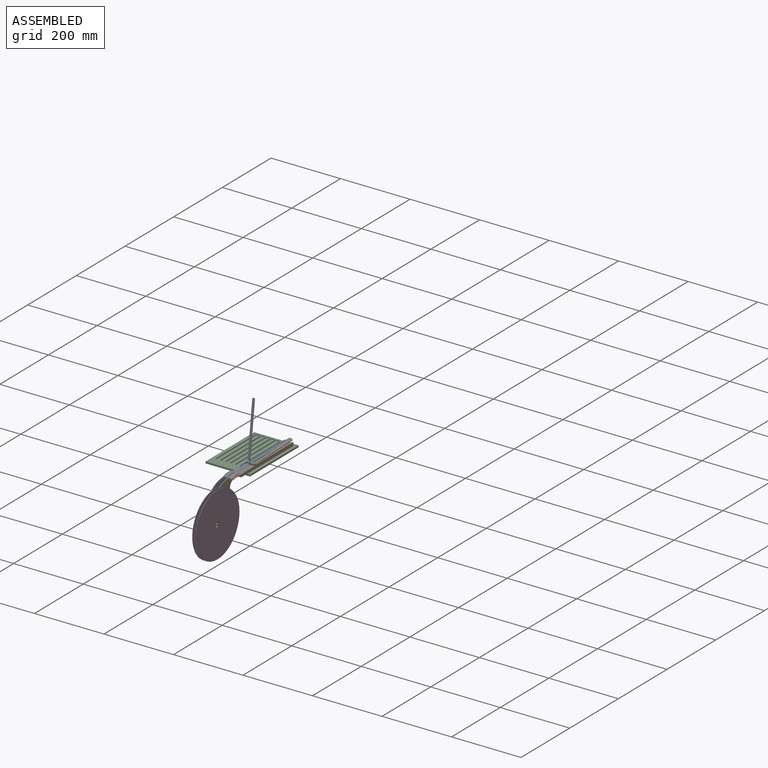
[diagram: assembled view]
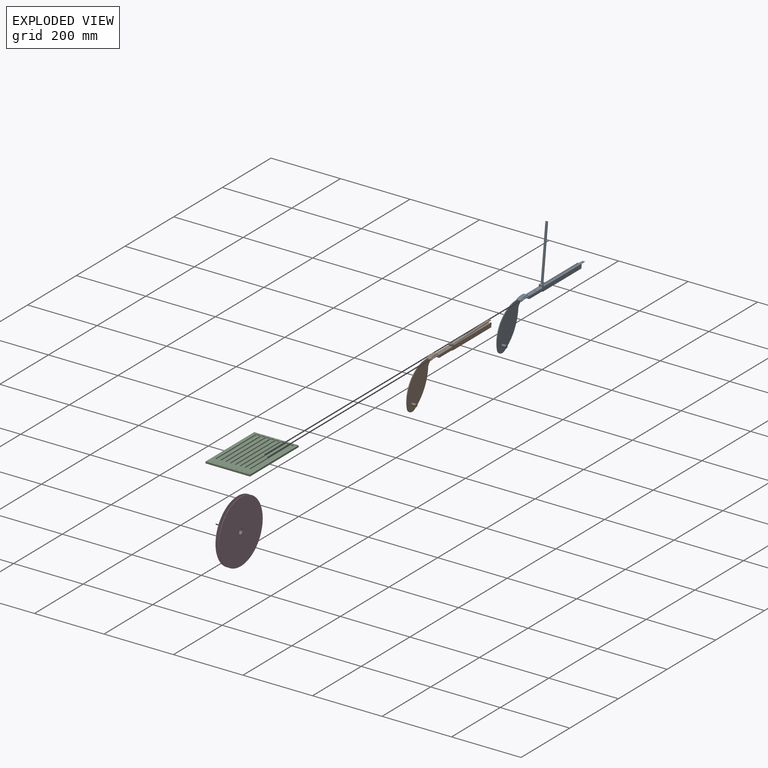
[diagram: exploded view]
GUIDED TOUR — MATED ASSEMBLY WITH SUBASSEMBLIES (Onshape document 09670830aaa709a325eec93c, AutoMate assembly 09670830aaa709a325eec93c_676e1ab209dbd482c11b53d5_d669f3113998ab0a5254547f_default)

This assembly has 26 component occurrences arranged in 4 top-level units: 2 individual components plus 2 subassemblies (S0, S1). The tour has two levels: first the top level, where each subassembly is treated as one rigid unit; then each subassembly is toured internally in its own section (nesting deeper than one subassembly level is flattened into its subassembly's section).

Components are labeled P0..P25 across the whole record; subassembly units are labeled S0..S1. A mate is a constraint between two units; its type names the relative motion it leaves free:
  FASTENED — locks the two components together rigidly (no relative motion),
  PLANAR — leaves sliding in the plane through the listed point (normal = the listed direction) and rotation about that normal free,
  REVOLUTE — leaves rotation about the listed axis free (a hinge).
Axis/direction vectors are unit vectors and 'through' points are millimeter coordinates, both in the assembly's world frame.

TOP-LEVEL MATES (between units; each subassembly's internal mates are listed in its own section)
  1. PLANAR "Planar 2": S1 <-> P3, direction (0.000, 1.000, 0.000) through (-10.76, 190.00, 11.09) mm
  2. PLANAR "Planar 7": S0 <-> P3, direction (0.000, 1.000, 0.000) through (-24.76, 190.00, 11.09) mm
  3. PLANAR "Planar 3": S1 <-> P3, direction (1.000, 0.000, 0.000) through (-8.10, 190.00, 3.00) mm
  4. PLANAR "Planar 6": S0 <-> P3, direction (1.000, 0.000, 0.000) through (-22.10, 30.00, 13.50) mm
  5. REVOLUTE "Revolute 1": S1 <-> P18, axis (1.000, 0.000, 0.000) through (-19.20, -120.00, -81.90) mm

TOP-LEVEL ASSEMBLY ORDER
  1. P3 — the base component [order verified]
  2. S0 [order verified]
  3. S1 [order verified]
  4. P18 [order verified]
Order-tag legend:
  [order verified] — this step's position reverses a verified removal order: the component was checked to insert without passing through the ones already placed.

Of the 26 component occurrences, 5 carry the full construction recipe — the FeatureScript program that regenerates the part's solid from scratch; the rest are supplied as boundary geometry only. Each toured unit is shown spotlighted twice — assembled, then exploded with a leader line back to its socket (green = recipe-attached component, orange = geometry-only, blue = subassembly unit; the rest desaturated gray).
NOTE — document 2 of 3 of this assembly tour. The two overview renders and the header above are repeated from document 1; the component sections below continue where the previous document stopped.
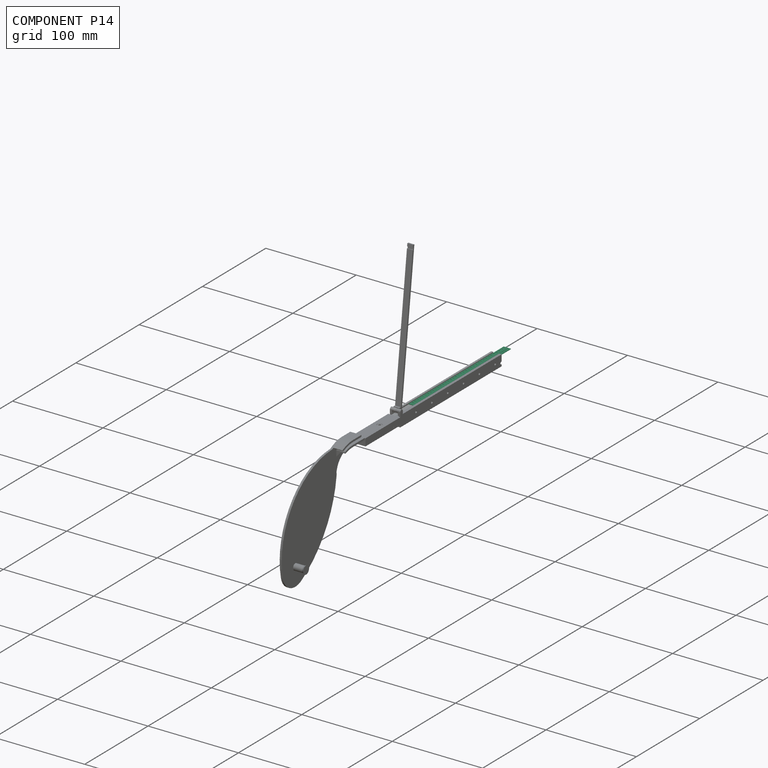
[diagram: component P14 — assembled]
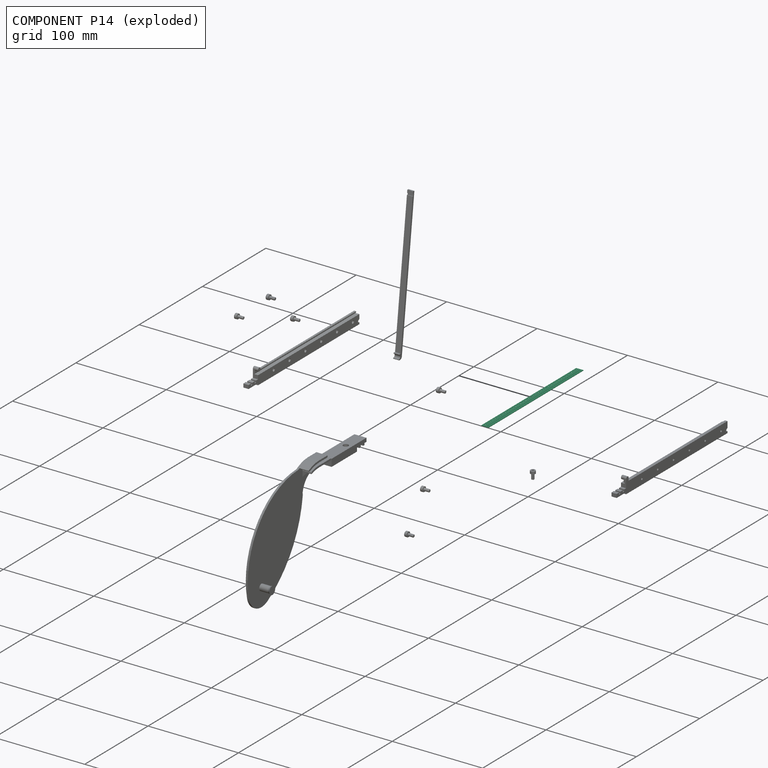
[diagram: component P14 — exploded]
COMPONENT P14 — recipe-attached (CADFS 00429435, mesh-verified: the recipe's output STEP matches this component's geometry to below the mesh-comparison resolution (tessellation chordal tolerance ~0.225 mm)).
Held by: PLANAR mate "Planar 2" to P5; PLANAR mate "Planar 1" to P15; PLANAR mate "Planar 1" to P15; PLANAR mate "Planar 2" to P5.
Construction recipe (FeatureScript — the CAD program that rebuilds this solid; sketch coordinates are in the units given by the * unit suffixes, e.g. mm):

FeatureScript 1511;
import(path : "onshape/std/geometry.fs", version : "1511.0");
import(path : "onshape/std/common.fs", version : "1511.0");
const mm = millimeter;
const VERTEX = EntityType.VERTEX;
const EDGE = EntityType.EDGE;
const FACE = EntityType.FACE;
const BODY = EntityType.BODY;
function v(x, y){return vector(x, y);}
function OD(order){return orderDisambiguation(order);}
function OSD(set){return originalSetDisambiguation(set);}
function TD(topology){return topologyDisambiguation(topology);}
function TDD(query){return trueDependencyDisambiguation(query);}
function sQuery(a, b, c) {return sketchEntityQuery(a, b, c);}

annotation { "Feature Type Name" : "Feature", "Feature Type Description" : "" }
export const myFeature = defineFeature(function(context is Context, id is Id, definition is map)
    precondition{}
    {
        {
            var Q0;
            Q0=qCreatedBy(makeId("Top.planeOp"),FACE);
            var sketch = newSketch(context, id + "F0", { "sketchPlane" : qUnion([Q0])});
            skLineSegment(sketch, "E0.bottom", {"start": v(0, 150) * mm, "end": v(8, 150) * mm});
            skLineSegment(sketch, "E0.top", {"start": v(0, 0) * mm, "end": v(8, 0) * mm});
            skLineSegment(sketch, "E0.left", {"start": v(0, 150) * mm, "end": v(0, 0) * mm});
            skLineSegment(sketch, "E0.right", {"start": v(8, 150) * mm, "end": v(8, 0) * mm});
            skCircle(sketch, "E1", {"center": v(1.75, 4) * mm, "radius": 0.75 * mm});
            skLineSegment(sketch, "E2.bottom", {"start": v(4.9, 2.6) * mm, "end": v(6, 2.6) * mm});
            skLineSegment(sketch, "E2.top", {"start": v(4.9, 2) * mm, "end": v(6, 2) * mm});
            skLineSegment(sketch, "E2.left", {"start": v(4.9, 2.6) * mm, "end": v(4.9, 2) * mm});
            skLineSegment(sketch, "E2.right", {"start": v(6, 2.6) * mm, "end": v(6, 2) * mm});
            skCircle(sketch, "E3.0.1.0", {"center": v(1.75, 8) * mm, "radius": 0.75 * mm});
            skCircle(sketch, "E3.0.2.0", {"center": v(1.75, 12) * mm, "radius": 0.75 * mm});
            skCircle(sketch, "E3.0.3.0", {"center": v(1.75, 16) * mm, "radius": 0.75 * mm});
            skCircle(sketch, "E3.0.4.0", {"center": v(1.75, 20) * mm, "radius": 0.75 * mm});
            skCircle(sketch, "E3.0.5.0", {"center": v(1.75, 24) * mm, "radius": 0.75 * mm});
            skCircle(sketch, "E3.0.6.0", {"center": v(1.75, 28) * mm, "radius": 0.75 * mm});
            skCircle(sketch, "E3.0.7.0", {"center": v(1.75, 32) * mm, "radius": 0.75 * mm});
            skCircle(sketch, "E3.0.8.0", {"center": v(1.75, 36) * mm, "radius": 0.75 * mm});
            skCircle(sketch, "E3.0.9.0", {"center": v(1.75, 40) * mm, "radius": 0.75 * mm});
            skCircle(sketch, "E3.0.10.0", {"center": v(1.75, 44) * mm, "radius": 0.75 * mm});
            skCircle(sketch, "E3.0.11.0", {"center": v(1.75, 48) * mm, "radius": 0.75 * mm});
            skCircle(sketch, "E3.0.12.0", {"center": v(1.75, 52) * mm, "radius": 0.75 * mm});
            skCircle(sketch, "E3.0.13.0", {"center": v(1.75, 56) * mm, "radius": 0.75 * mm});
            skCircle(sketch, "E3.0.14.0", {"center": v(1.75, 60) * mm, "radius": 0.75 * mm});
            skCircle(sketch, "E3.0.15.0", {"center": v(1.75, 64) * mm, "radius": 0.75 * mm});
            skCircle(sketch, "E3.0.16.0", {"center": v(1.75, 68) * mm, "radius": 0.75 * mm});
            skCircle(sketch, "E3.0.17.0", {"center": v(1.75, 72) * mm, "radius": 0.75 * mm});
            skCircle(sketch, "E3.0.18.0", {"center": v(1.75, 76) * mm, "radius": 0.75 * mm});
            skCircle(sketch, "E3.0.19.0", {"center": v(1.75, 80) * mm, "radius": 0.75 * mm});
            skCircle(sketch, "E3.0.20.0", {"center": v(1.75, 84) * mm, "radius": 0.75 * mm});
            skCircle(sketch, "E3.0.21.0", {"center": v(1.75, 88) * mm, "radius": 0.75 * mm});
            skCircle(sketch, "E3.0.22.0", {"center": v(1.75, 92) * mm, "radius": 0.75 * mm});
            skCircle(sketch, "E3.0.23.0", {"center": v(1.75, 96) * mm, "radius": 0.75 * mm});
            skCircle(sketch, "E3.0.24.0", {"center": v(1.75, 100) * mm, "radius": 0.75 * mm});
            skCircle(sketch, "E3.0.25.0", {"center": v(1.75, 104) * mm, "radius": 0.75 * mm});
            skCircle(sketch, "E3.0.26.0", {"center": v(1.75, 108) * mm, "radius": 0.75 * mm});
            skCircle(sketch, "E3.0.27.0", {"center": v(1.75, 112) * mm, "radius": 0.75 * mm});
            skCircle(sketch, "E3.0.28.0", {"center": v(1.75, 116) * mm, "radius": 0.75 * mm});
            skCircle(sketch, "E3.0.29.0", {"center": v(1.75, 120) * mm, "radius": 0.75 * mm});
            skCircle(sketch, "E3.0.30.0", {"center": v(1.75, 124) * mm, "radius": 0.75 * mm});
            skCircle(sketch, "E3.0.31.0", {"center": v(1.75, 128) * mm, "radius": 0.75 * mm});
            skCircle(sketch, "E3.0.32.0", {"center": v(1.75, 132) * mm, "radius": 0.75 * mm});
            skCircle(sketch, "E3.0.33.0", {"center": v(1.75, 136) * mm, "radius": 0.75 * mm});
            skCircle(sketch, "E3.0.34.0", {"center": v(1.75, 140) * mm, "radius": 0.75 * mm});
            skLineSegment(sketch, "E3.direction1", {"start": v(1.75, 4) * mm, "end": v(26.75, 4) * mm, "construction": true});
            skLineSegment(sketch, "E3.direction2", {"start": v(1.75, 4) * mm, "end": v(1.75, 8) * mm, "construction": true});
            skLineSegment(sketch, "E4.0.1.0", {"start": v(4.9, 4.6) * mm, "end": v(6, 4.6) * mm});
            skLineSegment(sketch, "E4.0.1.1", {"start": v(4.9, 4) * mm, "end": v(6, 4) * mm});
            skLineSegment(sketch, "E4.0.1.2", {"start": v(4.9, 4.6) * mm, "end": v(4.9, 4) * mm});
            skLineSegment(sketch, "E4.0.1.3", {"start": v(6, 4.6) * mm, "end": v(6, 4) * mm});
            skLineSegment(sketch, "E4.0.2.0", {"start": v(4.9, 6.6) * mm, "end": v(6, 6.6) * mm});
            skLineSegment(sketch, "E4.0.2.1", {"start": v(4.9, 6) * mm, "end": v(6, 6) * mm});
            skLineSegment(sketch, "E4.0.2.2", {"start": v(4.9, 6.6) * mm, "end": v(4.9, 6) * mm});
            skLineSegment(sketch, "E4.0.2.3", {"start": v(6, 6.6) * mm, "end": v(6, 6) * mm});
            skLineSegment(sketch, "E4.0.3.0", {"start": v(4.9, 8.6) * mm, "end": v(6, 8.6) * mm});
            skLineSegment(sketch, "E4.0.3.1", {"start": v(4.9, 8) * mm, "end": v(6, 8) * mm});
            skLineSegment(sketch, "E4.0.3.2", {"start": v(4.9, 8.6) * mm, "end": v(4.9, 8) * mm});
            skLineSegment(sketch, "E4.0.3.3", {"start": v(6, 8.6) * mm, "end": v(6, 8) * mm});
            skLineSegment(sketch, "E4.0.4.0", {"start": v(4.9, 10.6) * mm, "end": v(6, 10.6) * mm});
            skLineSegment(sketch, "E4.0.4.1", {"start": v(4.9, 10) * mm, "end": v(6, 10) * mm});
            skLineSegment(sketch, "E4.0.4.2", {"start": v(4.9, 10.6) * mm, "end": v(4.9, 10) * mm});
            skLineSegment(sketch, "E4.0.4.3", {"start": v(6, 10.6) * mm, "end": v(6, 10) * mm});
            skLineSegment(sketch, "E4.0.5.0", {"start": v(4.9, 12.6) * mm, "end": v(6, 12.6) * mm});
            skLineSegment(sketch, "E4.0.5.1", {"start": v(4.9, 12) * mm, "end": v(6, 12) * mm});
            skLineSegment(sketch, "E4.0.5.2", {"start": v(4.9, 12.6) * mm, "end": v(4.9, 12) * mm});
            skLineSegment(sketch, "E4.0.5.3", {"start": v(6, 12.6) * mm, "end": v(6, 12) * mm});
            skLineSegment(sketch, "E4.0.6.0", {"start": v(4.9, 14.6) * mm, "end": v(6, 14.6) * mm});
            skLineSegment(sketch, "E4.0.6.1", {"start": v(4.9, 14) * mm, "end": v(6, 14) * mm});
            skLineSegment(sketch, "E4.0.6.2", {"start": v(4.9, 14.6) * mm, "end": v(4.9, 14) * mm});
            skLineSegment(sketch, "E4.0.6.3", {"start": v(6, 14.6) * mm, "end": v(6, 14) * mm});
            skLineSegment(sketch, "E4.0.7.0", {"start": v(4.9, 16.6) * mm, "end": v(6, 16.6) * mm});
            skLineSegment(sketch, "E4.0.7.1", {"start": v(4.9, 16) * mm, "end": v(6, 16) * mm});
            skLineSegment(sketch, "E4.0.7.2", {"start": v(4.9, 16.6) * mm, "end": v(4.9, 16) * mm});
            skLineSegment(sketch, "E4.0.7.3", {"start": v(6, 16.6) * mm, "end": v(6, 16) * mm});
            skLineSegment(sketch, "E4.0.8.0", {"start": v(4.9, 18.6) * mm, "end": v(6, 18.6) * mm});
            skLineSegment(sketch, "E4.0.8.1", {"start": v(4.9, 18) * mm, "end": v(6, 18) * mm});
            skLineSegment(sketch, "E4.0.8.2", {"start": v(4.9, 18.6) * mm, "end": v(4.9, 18) * mm});
            skLineSegment(sketch, "E4.0.8.3", {"start": v(6, 18.6) * mm, "end": v(6, 18) * mm});
            skLineSegment(sketch, "E4.0.9.0", {"start": v(4.9, 20.6) * mm, "end": v(6, 20.6) * mm});
            skLineSegment(sketch, "E4.0.9.1", {"start": v(4.9, 20) * mm, "end": v(6, 20) * mm});
            skLineSegment(sketch, "E4.0.9.2", {"start": v(4.9, 20.6) * mm, "end": v(4.9, 20) * mm});
            skLineSegment(sketch, "E4.0.9.3", {"start": v(6, 20.6) * mm, "end": v(6, 20) * mm});
            skLineSegment(sketch, "E4.0.10.0", {"start": v(4.9, 22.6) * mm, "end": v(6, 22.6) * mm});
            skLineSegment(sketch, "E4.0.10.1", {"start": v(4.9, 22) * mm, "end": v(6, 22) * mm});
            skLineSegment(sketch, "E4.0.10.2", {"start": v(4.9, 22.6) * mm, "end": v(4.9, 22) * mm});
            skLineSegment(sketch, "E4.0.10.3", {"start": v(6, 22.6) * mm, "end": v(6, 22) * mm});
            skLineSegment(sketch, "E4.0.11.0", {"start": v(4.9, 24.6) * mm, "end": v(6, 24.6) * mm});
            skLineSegment(sketch, "E4.0.11.1", {"start": v(4.9, 24) * mm, "end": v(6, 24) * mm});
            skLineSegment(sketch, "E4.0.11.2", {"start": v(4.9, 24.6) * mm, "end": v(4.9, 24) * mm});
            skLineSegment(sketch, "E4.0.11.3", {"start": v(6, 24.6) * mm, "end": v(6, 24) * mm});
            skLineSegment(sketch, "E4.0.12.0", {"start": v(4.9, 26.6) * mm, "end": v(6, 26.6) * mm});
            skLineSegment(sketch, "E4.0.12.1", {"start": v(4.9, 26) * mm, "end": v(6, 26) * mm});
            skLineSegment(sketch, "E4.0.12.2", {"start": v(4.9, 26.6) * mm, "end": v(4.9, 26) * mm});
            skLineSegment(sketch, "E4.0.12.3", {"start": v(6, 26.6) * mm, "end": v(6, 26) * mm});
            skLineSegment(sketch, "E4.0.13.0", {"start": v(4.9, 28.6) * mm, "end": v(6, 28.6) * mm});
            skLineSegment(sketch, "E4.0.13.1", {"start": v(4.9, 28) * mm, "end": v(6, 28) * mm});
            skLineSegment(sketch, "E4.0.13.2", {"start": v(4.9, 28.6) * mm, "end": v(4.9, 28) * mm});
            skLineSegment(sketch, "E4.0.13.3", {"start": v(6, 28.6) * mm, "end": v(6, 28) * mm});
            skLineSegment(sketch, "E4.0.14.0", {"start": v(4.9, 30.6) * mm, "end": v(6, 30.6) * mm});
            skLineSegment(sketch, "E4.0.14.1", {"start": v(4.9, 30) * mm, "end": v(6, 30) * mm});
            skLineSegment(sketch, "E4.0.14.2", {"start": v(4.9, 30.6) * mm, "end": v(4.9, 30) * mm});
            skLineSegment(sketch, "E4.0.14.3", {"start": v(6, 30.6) * mm, "end": v(6, 30) * mm});
            skLineSegment(sketch, "E4.0.15.0", {"start": v(4.9, 32.6) * mm, "end": v(6, 32.6) * mm});
            skLineSegment(sketch, "E4.0.15.1", {"start": v(4.9, 32) * mm, "end": v(6, 32) * mm});
            skLineSegment(sketch, "E4.0.15.2", {"start": v(4.9, 32.6) * mm, "end": v(4.9, 32) * mm});
            skLineSegment(sketch, "E4.0.15.3", {"start": v(6, 32.6) * mm, "end": v(6, 32) * mm});
            skLineSegment(sketch, "E4.0.16.0", {"start": v(4.9, 34.6) * mm, "end": v(6, 34.6) * mm});
            skLineSegment(sketch, "E4.0.16.1", {"start": v(4.9, 34) * mm, "end": v(6, 34) * mm});
            skLineSegment(sketch, "E4.0.16.2", {"start": v(4.9, 34.6) * mm, "end": v(4.9, 34) * mm});
            skLineSegment(sketch, "E4.0.16.3", {"start": v(6, 34.6) * mm, "end": v(6, 34) * mm});
            skLineSegment(sketch, "E4.0.17.0", {"start": v(4.9, 36.6) * mm, "end": v(6, 36.6) * mm});
            skLineSegment(sketch, "E4.0.17.1", {"start": v(4.9, 36) * mm, "end": v(6, 36) * mm});
            skLineSegment(sketch, "E4.0.17.2", {"start": v(4.9, 36.6) * mm, "end": v(4.9, 36) * mm});
            skLineSegment(sketch, "E4.0.17.3", {"start": v(6, 36.6) * mm, "end": v(6, 36) * mm});
            skLineSegment(sketch, "E4.0.18.0", {"start": v(4.9, 38.6) * mm, "end": v(6, 38.6) * mm});
            skLineSegment(sketch, "E4.0.18.1", {"start": v(4.9, 38) * mm, "end": v(6, 38) * mm});
            skLineSegment(sketch, "E4.0.18.2", {"start": v(4.9, 38.6) * mm, "end": v(4.9, 38) * mm});
            skLineSegment(sketch, "E4.0.18.3", {"start": v(6, 38.6) * mm, "end": v(6, 38) * mm});
            skLineSegment(sketch, "E4.0.19.0", {"start": v(4.9, 40.6) * mm, "end": v(6, 40.6) * mm});
            skLineSegment(sketch, "E4.0.19.1", {"start": v(4.9, 40) * mm, "end": v(6, 40) * mm});
            skLineSegment(sketch, "E4.0.19.2", {"start": v(4.9, 40.6) * mm, "end": v(4.9, 40) * mm});
            skLineSegment(sketch, "E4.0.19.3", {"start": v(6, 40.6) * mm, "end": v(6, 40) * mm});
            skLineSegment(sketch, "E4.0.20.0", {"start": v(4.9, 42.6) * mm, "end": v(6, 42.6) * mm});
            skLineSegment(sketch, "E4.0.20.1", {"start": v(4.9, 42) * mm, "end": v(6, 42) * mm});
            skLineSegment(sketch, "E4.0.20.2", {"start": v(4.9, 42.6) * mm, "end": v(4.9, 42) * mm});
            skLineSegment(sketch, "E4.0.20.3", {"start": v(6, 42.6) * mm, "end": v(6, 42) * mm});
            skLineSegment(sketch, "E4.0.21.0", {"start": v(4.9, 44.6) * mm, "end": v(6, 44.6) * mm});
            skLineSegment(sketch, "E4.0.21.1", {"start": v(4.9, 44) * mm, "end": v(6, 44) * mm});
            skLineSegment(sketch, "E4.0.21.2", {"start": v(4.9, 44.6) * mm, "end": v(4.9, 44) * mm});
            skLineSegment(sketch, "E4.0.21.3", {"start": v(6, 44.6) * mm, "end": v(6, 44) * mm});
            skLineSegment(sketch, "E4.0.22.0", {"start": v(4.9, 46.6) * mm, "end": v(6, 46.6) * mm});
            skLineSegment(sketch, "E4.0.22.1", {"start": v(4.9, 46) * mm, "end": v(6, 46) * mm});
            skLineSegment(sketch, "E4.0.22.2", {"start": v(4.9, 46.6) * mm, "end": v(4.9, 46) * mm});
            skLineSegment(sketch, "E4.0.22.3", {"start": v(6, 46.6) * mm, "end": v(6, 46) * mm});
            skLineSegment(sketch, "E4.0.23.0", {"start": v(4.9, 48.6) * mm, "end": v(6, 48.6) * mm});
            skLineSegment(sketch, "E4.0.23.1", {"start": v(4.9, 48) * mm, "end": v(6, 48) * mm});
            skLineSegment(sketch, "E4.0.23.2", {"start": v(4.9, 48.6) * mm, "end": v(4.9, 48) * mm});
            skLineSegment(sketch, "E4.0.23.3", {"start": v(6, 48.6) * mm, "end": v(6, 48) * mm});
            skLineSegment(sketch, "E4.0.24.0", {"start": v(4.9, 50.6) * mm, "end": v(6, 50.6) * mm});
            skLineSegment(sketch, "E4.0.24.1", {"start": v(4.9, 50) * mm, "end": v(6, 50) * mm});
            skLineSegment(sketch, "E4.0.24.2", {"start": v(4.9, 50.6) * mm, "end": v(4.9, 50) * mm});
            skLineSegment(sketch, "E4.0.24.3", {"start": v(6, 50.6) * mm, "end": v(6, 50) * mm});
            skLineSegment(sketch, "E4.0.25.0", {"start": v(4.9, 52.6) * mm, "end": v(6, 52.6) * mm});
            skLineSegment(sketch, "E4.0.25.1", {"start": v(4.9, 52) * mm, "end": v(6, 52) * mm});
            skLineSegment(sketch, "E4.0.25.2", {"start": v(4.9, 52.6) * mm, "end": v(4.9, 52) * mm});
            skLineSegment(sketch, "E4.0.25.3", {"start": v(6, 52.6) * mm, "end": v(6, 52) * mm});
            skLineSegment(sketch, "E4.0.26.0", {"start": v(4.9, 54.6) * mm, "end": v(6, 54.6) * mm});
            skLineSegment(sketch, "E4.0.26.1", {"start": v(4.9, 54) * mm, "end": v(6, 54) * mm});
            skLineSegment(sketch, "E4.0.26.2", {"start": v(4.9, 54.6) * mm, "end": v(4.9, 54) * mm});
            skLineSegment(sketch, "E4.0.26.3", {"start": v(6, 54.6) * mm, "end": v(6, 54) * mm});
            skLineSegment(sketch, "E4.0.27.0", {"start": v(4.9, 56.6) * mm, "end": v(6, 56.6) * mm});
            skLineSegment(sketch, "E4.0.27.1", {"start": v(4.9, 56) * mm, "end": v(6, 56) * mm});
            skLineSegment(sketch, "E4.0.27.2", {"start": v(4.9, 56.6) * mm, "end": v(4.9, 56) * mm});
            skLineSegment(sketch, "E4.0.27.3", {"start": v(6, 56.6) * mm, "end": v(6, 56) * mm});
            skLineSegment(sketch, "E4.0.28.0", {"start": v(4.9, 58.6) * mm, "end": v(6, 58.6) * mm});
            skLineSegment(sketch, "E4.0.28.1", {"start": v(4.9, 58) * mm, "end": v(6, 58) * mm});
            skLineSegment(sketch, "E4.0.28.2", {"start": v(4.9, 58.6) * mm, "end": v(4.9, 58) * mm});
            skLineSegment(sketch, "E4.0.28.3", {"start": v(6, 58.6) * mm, "end": v(6, 58) * mm});
            skLineSegment(sketch, "E4.0.29.0", {"start": v(4.9, 60.6) * mm, "end": v(6, 60.6) * mm});
            skLineSegment(sketch, "E4.0.29.1", {"start": v(4.9, 60) * mm, "end": v(6, 60) * mm});
            skLineSegment(sketch, "E4.0.29.2", {"start": v(4.9, 60.6) * mm, "end": v(4.9, 60) * mm});
            skLineSegment(sketch, "E4.0.29.3", {"start": v(6, 60.6) * mm, "end": v(6, 60) * mm});
            skLineSegment(sketch, "E4.0.30.0", {"start": v(4.9, 62.6) * mm, "end": v(6, 62.6) * mm});
            skLineSegment(sketch, "E4.0.30.1", {"start": v(4.9, 62) * mm, "end": v(6, 62) * mm});
            skLineSegment(sketch, "E4.0.30.2", {"start": v(4.9, 62.6) * mm, "end": v(4.9, 62) * mm});
            skLineSegment(sketch, "E4.0.30.3", {"start": v(6, 62.6) * mm, "end": v(6, 62) * mm});
            skLineSegment(sketch, "E4.0.31.0", {"start": v(4.9, 64.6) * mm, "end": v(6, 64.6) * mm});
            skLineSegment(sketch, "E4.0.31.1", {"start": v(4.9, 64) * mm, "end": v(6, 64) * mm});
            skLineSegment(sketch, "E4.0.31.2", {"start": v(4.9, 64.6) * mm, "end": v(4.9, 64) * mm});
            skLineSegment(sketch, "E4.0.31.3", {"start": v(6, 64.6) * mm, "end": v(6, 64) * mm});
            skLineSegment(sketch, "E4.0.32.0", {"start": v(4.9, 66.6) * mm, "end": v(6, 66.6) * mm});
            skLineSegment(sketch, "E4.0.32.1", {"start": v(4.9, 66) * mm, "end": v(6, 66) * mm});
            skLineSegment(sketch, "E4.0.32.2", {"start": v(4.9, 66.6) * mm, "end": v(4.9, 66) * mm});
            skLineSegment(sketch, "E4.0.32.3", {"start": v(6, 66.6) * mm, "end": v(6, 66) * mm});
            skLineSegment(sketch, "E4.0.33.0", {"start": v(4.9, 68.6) * mm, "end": v(6, 68.6) * mm});
            skLineSegment(sketch, "E4.0.33.1", {"start": v(4.9, 68) * mm, "end": v(6, 68) * mm});
            skLineSegment(sketch, "E4.0.33.2", {"start": v(4.9, 68.6) * mm, "end": v(4.9, 68) * mm});
            skLineSegment(sketch, "E4.0.33.3", {"start": v(6, 68.6) * mm, "end": v(6, 68) * mm});
            skLineSegment(sketch, "E4.0.34.0", {"start": v(4.9, 70.6) * mm, "end": v(6, 70.6) * mm});
            skLineSegment(sketch, "E4.0.34.1", {"start": v(4.9, 70) * mm, "end": v(6, 70) * mm});
            skLineSegment(sketch, "E4.0.34.2", {"start": v(4.9, 70.6) * mm, "end": v(4.9, 70) * mm});
            skLineSegment(sketch, "E4.0.34.3", {"start": v(6, 70.6) * mm, "end": v(6, 70) * mm});
            skLineSegment(sketch, "E4.0.35.0", {"start": v(4.9, 72.6) * mm, "end": v(6, 72.6) * mm});
            skLineSegment(sketch, "E4.0.35.1", {"start": v(4.9, 72) * mm, "end": v(6, 72) * mm});
            skLineSegment(sketch, "E4.0.35.2", {"start": v(4.9, 72.6) * mm, "end": v(4.9, 72) * mm});
            skLineSegment(sketch, "E4.0.35.3", {"start": v(6, 72.6) * mm, "end": v(6, 72) * mm});
            skLineSegment(sketch, "E4.0.36.0", {"start": v(4.9, 74.6) * mm, "end": v(6, 74.6) * mm});
            skLineSegment(sketch, "E4.0.36.1", {"start": v(4.9, 74) * mm, "end": v(6, 74) * mm});
            skLineSegment(sketch, "E4.0.36.2", {"start": v(4.9, 74.6) * mm, "end": v(4.9, 74) * mm});
            skLineSegment(sketch, "E4.0.36.3", {"start": v(6, 74.6) * mm, "end": v(6, 74) * mm});
            skLineSegment(sketch, "E4.0.37.0", {"start": v(4.9, 76.6) * mm, "end": v(6, 76.6) * mm});
            skLineSegment(sketch, "E4.0.37.1", {"start": v(4.9, 76) * mm, "end": v(6, 76) * mm});
            skLineSegment(sketch, "E4.0.37.2", {"start": v(4.9, 76.6) * mm, "end": v(4.9, 76) * mm});
            skLineSegment(sketch, "E4.0.37.3", {"start": v(6, 76.6) * mm, "end": v(6, 76) * mm});
            skLineSegment(sketch, "E4.0.38.0", {"start": v(4.9, 78.6) * mm, "end": v(6, 78.6) * mm});
            skLineSegment(sketch, "E4.0.38.1", {"start": v(4.9, 78) * mm, "end": v(6, 78) * mm});
            skLineSegment(sketch, "E4.0.38.2", {"start": v(4.9, 78.6) * mm, "end": v(4.9, 78) * mm});
            skLineSegment(sketch, "E4.0.38.3", {"start": v(6, 78.6) * mm, "end": v(6, 78) * mm});
            skLineSegment(sketch, "E4.0.39.0", {"start": v(4.9, 80.6) * mm, "end": v(6, 80.6) * mm});
            skLineSegment(sketch, "E4.0.39.1", {"start": v(4.9, 80) * mm, "end": v(6, 80) * mm});
            skLineSegment(sketch, "E4.0.39.2", {"start": v(4.9, 80.6) * mm, "end": v(4.9, 80) * mm});
            skLineSegment(sketch, "E4.0.39.3", {"start": v(6, 80.6) * mm, "end": v(6, 80) * mm});
            skLineSegment(sketch, "E4.0.40.0", {"start": v(4.9, 82.6) * mm, "end": v(6, 82.6) * mm});
            skLineSegment(sketch, "E4.0.40.1", {"start": v(4.9, 82) * mm, "end": v(6, 82) * mm});
            skLineSegment(sketch, "E4.0.40.2", {"start": v(4.9, 82.6) * mm, "end": v(4.9, 82) * mm});
            skLineSegment(sketch, "E4.0.40.3", {"start": v(6, 82.6) * mm, "end": v(6, 82) * mm});
            skLineSegment(sketch, "E4.0.41.0", {"start": v(4.9, 84.6) * mm, "end": v(6, 84.6) * mm});
            skLineSegment(sketch, "E4.0.41.1", {"start": v(4.9, 84) * mm, "end": v(6, 84) * mm});
            skLineSegment(sketch, "E4.0.41.2", {"start": v(4.9, 84.6) * mm, "end": v(4.9, 84) * mm});
            skLineSegment(sketch, "E4.0.41.3", {"start": v(6, 84.6) * mm, "end": v(6, 84) * mm});
            skLineSegment(sketch, "E4.0.42.0", {"start": v(4.9, 86.6) * mm, "end": v(6, 86.6) * mm});
            skLineSegment(sketch, "E4.0.42.1", {"start": v(4.9, 86) * mm, "end": v(6, 86) * mm});
            skLineSegment(sketch, "E4.0.42.2", {"start": v(4.9, 86.6) * mm, "end": v(4.9, 86) * mm});
            skLineSegment(sketch, "E4.0.42.3", {"start": v(6, 86.6) * mm, "end": v(6, 86) * mm});
            skLineSegment(sketch, "E4.0.43.0", {"start": v(4.9, 88.6) * mm, "end": v(6, 88.6) * mm});
            skLineSegment(sketch, "E4.0.43.1", {"start": v(4.9, 88) * mm, "end": v(6, 88) * mm});
            skLineSegment(sketch, "E4.0.43.2", {"start": v(4.9, 88.6) * mm, "end": v(4.9, 88) * mm});
            skLineSegment(sketch, "E4.0.43.3", {"start": v(6, 88.6) * mm, "end": v(6, 88) * mm});
            skLineSegment(sketch, "E4.0.44.0", {"start": v(4.9, 90.6) * mm, "end": v(6, 90.6) * mm});
            skLineSegment(sketch, "E4.0.44.1", {"start": v(4.9, 90) * mm, "end": v(6, 90) * mm});
            skLineSegment(sketch, "E4.0.44.2", {"start": v(4.9, 90.6) * mm, "end": v(4.9, 90) * mm});
            skLineSegment(sketch, "E4.0.44.3", {"start": v(6, 90.6) * mm, "end": v(6, 90) * mm});
            skLineSegment(sketch, "E4.0.45.0", {"start": v(4.9, 92.6) * mm, "end": v(6, 92.6) * mm});
            skLineSegment(sketch, "E4.0.45.1", {"start": v(4.9, 92) * mm, "end": v(6, 92) * mm});
            skLineSegment(sketch, "E4.0.45.2", {"start": v(4.9, 92.6) * mm, "end": v(4.9, 92) * mm});
            skLineSegment(sketch, "E4.0.45.3", {"start": v(6, 92.6) * mm, "end": v(6, 92) * mm});
            skLineSegment(sketch, "E4.0.46.0", {"start": v(4.9, 94.6) * mm, "end": v(6, 94.6) * mm});
            skLineSegment(sketch, "E4.0.46.1", {"start": v(4.9, 94) * mm, "end": v(6, 94) * mm});
            skLineSegment(sketch, "E4.0.46.2", {"start": v(4.9, 94.6) * mm, "end": v(4.9, 94) * mm});
            skLineSegment(sketch, "E4.0.46.3", {"start": v(6, 94.6) * mm, "end": v(6, 94) * mm});
            skLineSegment(sketch, "E4.0.47.0", {"start": v(4.9, 96.6) * mm, "end": v(6, 96.6) * mm});
            skLineSegment(sketch, "E4.0.47.1", {"start": v(4.9, 96) * mm, "end": v(6, 96) * mm});
            skLineSegment(sketch, "E4.0.47.2", {"start": v(4.9, 96.6) * mm, "end": v(4.9, 96) * mm});
            skLineSegment(sketch, "E4.0.47.3", {"start": v(6, 96.6) * mm, "end": v(6, 96) * mm});
            skLineSegment(sketch, "E4.0.48.0", {"start": v(4.9, 98.6) * mm, "end": v(6, 98.6) * mm});
            skLineSegment(sketch, "E4.0.48.1", {"start": v(4.9, 98) * mm, "end": v(6, 98) * mm});
            skLineSegment(sketch, "E4.0.48.2", {"start": v(4.9, 98.6) * mm, "end": v(4.9, 98) * mm});
            skLineSegment(sketch, "E4.0.48.3", {"start": v(6, 98.6) * mm, "end": v(6, 98) * mm});
            skLineSegment(sketch, "E4.0.49.0", {"start": v(4.9, 100.6) * mm, "end": v(6, 100.6) * mm});
            skLineSegment(sketch, "E4.0.49.1", {"start": v(4.9, 100) * mm, "end": v(6, 100) * mm});
            skLineSegment(sketch, "E4.0.49.2", {"start": v(4.9, 100.6) * mm, "end": v(4.9, 100) * mm});
            skLineSegment(sketch, "E4.0.49.3", {"start": v(6, 100.6) * mm, "end": v(6, 100) * mm});
            skLineSegment(sketch, "E4.direction1", {"start": v(4.9, 2) * mm, "end": v(29.9, 2) * mm, "construction": true});
            skLineSegment(sketch, "E4.direction2", {"start": v(4.9, 2) * mm, "end": v(4.9, 4) * mm, "construction": true});
            skCircle(sketch, "E5.0.0.35", {"center": v(1.75, 144) * mm, "radius": 0.75 * mm});
            skCircle(sketch, "E5.0.0.36", {"center": v(1.75, 148) * mm, "radius": 0.75 * mm});
            skLineSegment(sketch, "E6.0.0.50", {"start": v(4.9, 102.6) * mm, "end": v(6, 102.6) * mm});
            skLineSegment(sketch, "E6.3.0.50", {"start": v(4.9, 102) * mm, "end": v(6, 102) * mm});
            skLineSegment(sketch, "E6.6.0.50", {"start": v(4.9, 102.6) * mm, "end": v(4.9, 102) * mm});
            skLineSegment(sketch, "E6.9.0.50", {"start": v(6, 102.6) * mm, "end": v(6, 102) * mm});
            skLineSegment(sketch, "E6.0.0.51", {"start": v(4.9, 104.6) * mm, "end": v(6, 104.6) * mm});
            skLineSegment(sketch, "E6.3.0.51", {"start": v(4.9, 104) * mm, "end": v(6, 104) * mm});
            skLineSegment(sketch, "E6.6.0.51", {"start": v(4.9, 104.6) * mm, "end": v(4.9, 104) * mm});
            skLineSegment(sketch, "E6.9.0.51", {"start": v(6, 104.6) * mm, "end": v(6, 104) * mm});
            skLineSegment(sketch, "E6.0.0.52", {"start": v(4.9, 106.6) * mm, "end": v(6, 106.6) * mm});
            skLineSegment(sketch, "E6.3.0.52", {"start": v(4.9, 106) * mm, "end": v(6, 106) * mm});
            skLineSegment(sketch, "E6.6.0.52", {"start": v(4.9, 106.6) * mm, "end": v(4.9, 106) * mm});
            skLineSegment(sketch, "E6.9.0.52", {"start": v(6, 106.6) * mm, "end": v(6, 106) * mm});
            skLineSegment(sketch, "E6.0.0.53", {"start": v(4.9, 108.6) * mm, "end": v(6, 108.6) * mm});
            skLineSegment(sketch, "E6.3.0.53", {"start": v(4.9, 108) * mm, "end": v(6, 108) * mm});
            skLineSegment(sketch, "E6.6.0.53", {"start": v(4.9, 108.6) * mm, "end": v(4.9, 108) * mm});
            skLineSegment(sketch, "E6.9.0.53", {"start": v(6, 108.6) * mm, "end": v(6, 108) * mm});
            skLineSegment(sketch, "E6.0.0.54", {"start": v(4.9, 110.6) * mm, "end": v(6, 110.6) * mm});
            skLineSegment(sketch, "E6.3.0.54", {"start": v(4.9, 110) * mm, "end": v(6, 110) * mm});
            skLineSegment(sketch, "E6.6.0.54", {"start": v(4.9, 110.6) * mm, "end": v(4.9, 110) * mm});
            skLineSegment(sketch, "E6.9.0.54", {"start": v(6, 110.6) * mm, "end": v(6, 110) * mm});
            skLineSegment(sketch, "E6.0.0.55", {"start": v(4.9, 112.6) * mm, "end": v(6, 112.6) * mm});
            skLineSegment(sketch, "E6.3.0.55", {"start": v(4.9, 112) * mm, "end": v(6, 112) * mm});
            skLineSegment(sketch, "E6.6.0.55", {"start": v(4.9, 112.6) * mm, "end": v(4.9, 112) * mm});
            skLineSegment(sketch, "E6.9.0.55", {"start": v(6, 112.6) * mm, "end": v(6, 112) * mm});
            skLineSegment(sketch, "E6.0.0.56", {"start": v(4.9, 114.6) * mm, "end": v(6, 114.6) * mm});
            skLineSegment(sketch, "E6.3.0.56", {"start": v(4.9, 114) * mm, "end": v(6, 114) * mm});
            skLineSegment(sketch, "E6.6.0.56", {"start": v(4.9, 114.6) * mm, "end": v(4.9, 114) * mm});
            skLineSegment(sketch, "E6.9.0.56", {"start": v(6, 114.6) * mm, "end": v(6, 114) * mm});
            skLineSegment(sketch, "E6.0.0.57", {"start": v(4.9, 116.6) * mm, "end": v(6, 116.6) * mm});
            skLineSegment(sketch, "E6.3.0.57", {"start": v(4.9, 116) * mm, "end": v(6, 116) * mm});
            skLineSegment(sketch, "E6.6.0.57", {"start": v(4.9, 116.6) * mm, "end": v(4.9, 116) * mm});
            skLineSegment(sketch, "E6.9.0.57", {"start": v(6, 116.6) * mm, "end": v(6, 116) * mm});
            skLineSegment(sketch, "E6.0.0.58", {"start": v(4.9, 118.6) * mm, "end": v(6, 118.6) * mm});
            skLineSegment(sketch, "E6.3.0.58", {"start": v(4.9, 118) * mm, "end": v(6, 118) * mm});
            skLineSegment(sketch, "E6.6.0.58", {"start": v(4.9, 118.6) * mm, "end": v(4.9, 118) * mm});
            skLineSegment(sketch, "E6.9.0.58", {"start": v(6, 118.6) * mm, "end": v(6, 118) * mm});
            skLineSegment(sketch, "E6.0.0.59", {"start": v(4.9, 120.6) * mm, "end": v(6, 120.6) * mm});
            skLineSegment(sketch, "E6.3.0.59", {"start": v(4.9, 120) * mm, "end": v(6, 120) * mm});
            skLineSegment(sketch, "E6.6.0.59", {"start": v(4.9, 120.6) * mm, "end": v(4.9, 120) * mm});
            skLineSegment(sketch, "E6.9.0.59", {"start": v(6, 120.6) * mm, "end": v(6, 120) * mm});
            skLineSegment(sketch, "E6.0.0.60", {"start": v(4.9, 122.6) * mm, "end": v(6, 122.6) * mm});
            skLineSegment(sketch, "E6.3.0.60", {"start": v(4.9, 122) * mm, "end": v(6, 122) * mm});
            skLineSegment(sketch, "E6.6.0.60", {"start": v(4.9, 122.6) * mm, "end": v(4.9, 122) * mm});
            skLineSegment(sketch, "E6.9.0.60", {"start": v(6, 122.6) * mm, "end": v(6, 122) * mm});
            skLineSegment(sketch, "E6.0.0.61", {"start": v(4.9, 124.6) * mm, "end": v(6, 124.6) * mm});
            skLineSegment(sketch, "E6.3.0.61", {"start": v(4.9, 124) * mm, "end": v(6, 124) * mm});
            skLineSegment(sketch, "E6.6.0.61", {"start": v(4.9, 124.6) * mm, "end": v(4.9, 124) * mm});
            skLineSegment(sketch, "E6.9.0.61", {"start": v(6, 124.6) * mm, "end": v(6, 124) * mm});
            skLineSegment(sketch, "E6.0.0.62", {"start": v(4.9, 126.6) * mm, "end": v(6, 126.6) * mm});
            skLineSegment(sketch, "E6.3.0.62", {"start": v(4.9, 126) * mm, "end": v(6, 126) * mm});
            skLineSegment(sketch, "E6.6.0.62", {"start": v(4.9, 126.6) * mm, "end": v(4.9, 126) * mm});
            skLineSegment(sketch, "E6.9.0.62", {"start": v(6, 126.6) * mm, "end": v(6, 126) * mm});
            skLineSegment(sketch, "E6.0.0.63", {"start": v(4.9, 128.6) * mm, "end": v(6, 128.6) * mm});
            skLineSegment(sketch, "E6.3.0.63", {"start": v(4.9, 128) * mm, "end": v(6, 128) * mm});
            skLineSegment(sketch, "E6.6.0.63", {"start": v(4.9, 128.6) * mm, "end": v(4.9, 128) * mm});
            skLineSegment(sketch, "E6.9.0.63", {"start": v(6, 128.6) * mm, "end": v(6, 128) * mm});
            skLineSegment(sketch, "E6.0.0.64", {"start": v(4.9, 130.6) * mm, "end": v(6, 130.6) * mm});
            skLineSegment(sketch, "E6.3.0.64", {"start": v(4.9, 130) * mm, "end": v(6, 130) * mm});
            skLineSegment(sketch, "E6.6.0.64", {"start": v(4.9, 130.6) * mm, "end": v(4.9, 130) * mm});
            skLineSegment(sketch, "E6.9.0.64", {"start": v(6, 130.6) * mm, "end": v(6, 130) * mm});
            skLineSegment(sketch, "E6.0.0.65", {"start": v(4.9, 132.6) * mm, "end": v(6, 132.6) * mm});
            skLineSegment(sketch, "E6.3.0.65", {"start": v(4.9, 132) * mm, "end": v(6, 132) * mm});
            skLineSegment(sketch, "E6.6.0.65", {"start": v(4.9, 132.6) * mm, "end": v(4.9, 132) * mm});
            skLineSegment(sketch, "E6.9.0.65", {"start": v(6, 132.6) * mm, "end": v(6, 132) * mm});
            skLineSegment(sketch, "E6.0.0.66", {"start": v(4.9, 134.6) * mm, "end": v(6, 134.6) * mm});
            skLineSegment(sketch, "E6.3.0.66", {"start": v(4.9, 134) * mm, "end": v(6, 134) * mm});
            skLineSegment(sketch, "E6.6.0.66", {"start": v(4.9, 134.6) * mm, "end": v(4.9, 134) * mm});
            skLineSegment(sketch, "E6.9.0.66", {"start": v(6, 134.6) * mm, "end": v(6, 134) * mm});
            skLineSegment(sketch, "E6.0.0.67", {"start": v(4.9, 136.6) * mm, "end": v(6, 136.6) * mm});
            skLineSegment(sketch, "E6.3.0.67", {"start": v(4.9, 136) * mm, "end": v(6, 136) * mm});
            skLineSegment(sketch, "E6.6.0.67", {"start": v(4.9, 136.6) * mm, "end": v(4.9, 136) * mm});
            skLineSegment(sketch, "E6.9.0.67", {"start": v(6, 136.6) * mm, "end": v(6, 136) * mm});
            skLineSegment(sketch, "E6.0.0.68", {"start": v(4.9, 138.6) * mm, "end": v(6, 138.6) * mm});
            skLineSegment(sketch, "E6.3.0.68", {"start": v(4.9, 138) * mm, "end": v(6, 138) * mm});
            skLineSegment(sketch, "E6.6.0.68", {"start": v(4.9, 138.6) * mm, "end": v(4.9, 138) * mm});
            skLineSegment(sketch, "E6.9.0.68", {"start": v(6, 138.6) * mm, "end": v(6, 138) * mm});
            skLineSegment(sketch, "E6.0.0.69", {"start": v(4.9, 140.6) * mm, "end": v(6, 140.6) * mm});
            skLineSegment(sketch, "E6.3.0.69", {"start": v(4.9, 140) * mm, "end": v(6, 140) * mm});
            skLineSegment(sketch, "E6.6.0.69", {"start": v(4.9, 140.6) * mm, "end": v(4.9, 140) * mm});
            skLineSegment(sketch, "E6.9.0.69", {"start": v(6, 140.6) * mm, "end": v(6, 140) * mm});
            skLineSegment(sketch, "E6.0.0.70", {"start": v(4.9, 142.6) * mm, "end": v(6, 142.6) * mm});
            skLineSegment(sketch, "E6.3.0.70", {"start": v(4.9, 142) * mm, "end": v(6, 142) * mm});
            skLineSegment(sketch, "E6.6.0.70", {"start": v(4.9, 142.6) * mm, "end": v(4.9, 142) * mm});
            skLineSegment(sketch, "E6.9.0.70", {"start": v(6, 142.6) * mm, "end": v(6, 142) * mm});
            skLineSegment(sketch, "E6.0.0.71", {"start": v(4.9, 144.6) * mm, "end": v(6, 144.6) * mm});
            skLineSegment(sketch, "E6.3.0.71", {"start": v(4.9, 144) * mm, "end": v(6, 144) * mm});
            skLineSegment(sketch, "E6.6.0.71", {"start": v(4.9, 144.6) * mm, "end": v(4.9, 144) * mm});
            skLineSegment(sketch, "E6.9.0.71", {"start": v(6, 144.6) * mm, "end": v(6, 144) * mm});
            skLineSegment(sketch, "E7.0.0.72", {"start": v(4.9, 146.6) * mm, "end": v(6, 146.6) * mm});
            skLineSegment(sketch, "E7.3.0.72", {"start": v(4.9, 146) * mm, "end": v(6, 146) * mm});
            skLineSegment(sketch, "E7.6.0.72", {"start": v(4.9, 146.6) * mm, "end": v(4.9, 146) * mm});
            skLineSegment(sketch, "E7.9.0.72", {"start": v(6, 146.6) * mm, "end": v(6, 146) * mm});
            skLineSegment(sketch, "E7.0.0.73", {"start": v(4.9, 148.6) * mm, "end": v(6, 148.6) * mm});
            skLineSegment(sketch, "E7.3.0.73", {"start": v(4.9, 148) * mm, "end": v(6, 148) * mm});
            skLineSegment(sketch, "E7.6.0.73", {"start": v(4.9, 148.6) * mm, "end": v(4.9, 148) * mm});
            skLineSegment(sketch, "E7.9.0.73", {"start": v(6, 148.6) * mm, "end": v(6, 148) * mm});
            skSolve(sketch);
        }
        {
            var Q0;
            Q0=makeQuery(id+"F0.imprint","IMPRINT",FACE,{"disambiguationData":[TD([[makeQuery(id+"F0.imprint","IMPRINT",EDGE,{"derivedFrom":sQuery(id+"F0.wireOp",EDGE,"E0.bottom")}),-1.0]])]});
            extrude(context, id + "F1", {"entities" : qUnion([Q0]), "depth" : 0.5 * mm});
        }
    });
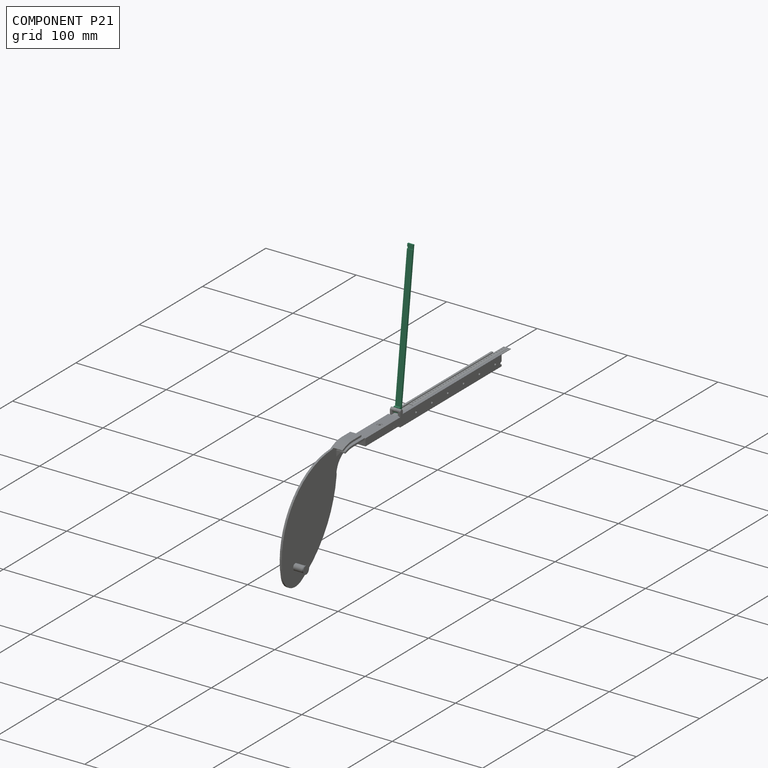
[diagram: component P21 — assembled]
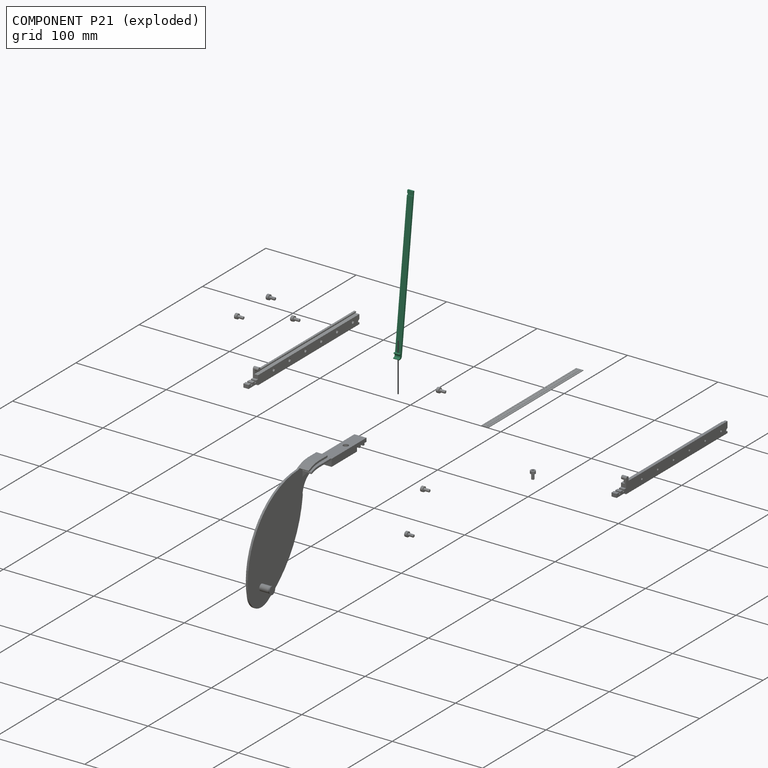
[diagram: component P21 — exploded]
COMPONENT P21 — recipe-attached (CADFS 00429434, mesh-verified: the recipe's output STEP matches this component's geometry to below the mesh-comparison resolution (tessellation chordal tolerance ~0.243 mm)).
Held by: REVOLUTE mate "Revolute 1" to P15; REVOLUTE mate "Revolute 1" to P15.
Construction recipe (FeatureScript — the CAD program that rebuilds this solid; sketch coordinates are in the units given by the * unit suffixes, e.g. mm):

FeatureScript 1511;
import(path : "onshape/std/geometry.fs", version : "1511.0");
import(path : "onshape/std/common.fs", version : "1511.0");
const mm = millimeter;
const VERTEX = EntityType.VERTEX;
const EDGE = EntityType.EDGE;
const FACE = EntityType.FACE;
const BODY = EntityType.BODY;
function v(x, y){return vector(x, y);}
function OD(order){return orderDisambiguation(order);}
function OSD(set){return originalSetDisambiguation(set);}
function TD(topology){return topologyDisambiguation(topology);}
function TDD(query){return trueDependencyDisambiguation(query);}
function sQuery(a, b, c) {return sketchEntityQuery(a, b, c);}

annotation { "Feature Type Name" : "Feature", "Feature Type Description" : "" }
export const myFeature = defineFeature(function(context is Context, id is Id, definition is map)
    precondition{}
    {
        {
            var Q0;
            Q0=qCreatedBy(makeId("Right.planeOp"),FACE);
            var sketch = newSketch(context, id + "F0", { "sketchPlane" : qUnion([Q0])});
            skLineSegment(sketch, "E0.bottom", {"start": v(0, 0) * mm, "end": v(-159, 0) * mm});
            skLineSegment(sketch, "E0.top", {"start": v(0, 2) * mm, "end": v(-156, 2) * mm});
            skLineSegment(sketch, "E0.left", {"start": v(0, 0) * mm, "end": v(0, 2) * mm});
            skArc(sketch, "E1", {"start": v(-160.96, 4) * mm, "mid": v(-159, 2.4) * mm, "end": v(-157.04, 4) * mm});
            skLineSegment(sketch, "E2", {"start": v(-159, 4.4) * mm, "end": v(-157, 4.4) * mm, "construction": true});
            skLineSegment(sketch, "E3.top", {"start": v(-161.45, 4.4) * mm, "end": v(-161.5, 4.4) * mm});
            skLineSegment(sketch, "E3.right", {"start": v(-162, 3) * mm, "end": v(-162, 3.9) * mm});
            skLineSegment(sketch, "E4.bottom", {"start": v(-156.55, 4.4) * mm, "end": v(-156.5, 4.4) * mm});
            skLineSegment(sketch, "E4.right", {"start": v(-156, 3.9) * mm, "end": v(-156, 2) * mm});
            skPoint(sketch, "E5.start.orphan", {"position": v(-161, 4.4) * mm});
            skPoint(sketch, "E6.visualSharp", {"position": v(-162, 4.4) * mm});
            skArc(sketch, "E6.filletArc", {"start": v(-161.5, 4.4) * mm, "mid": v(-161.85, 4.25) * mm, "end": v(-162, 3.9) * mm});
            skPoint(sketch, "E7.visualSharp", {"position": v(-157, 4.4) * mm});
            skArc(sketch, "E7.filletArc", {"start": v(-156.55, 4.4) * mm, "mid": v(-156.87, 4.29) * mm, "end": v(-157.04, 4) * mm});
            skPoint(sketch, "E8.visualSharp", {"position": v(-156, 4.4) * mm});
            skArc(sketch, "E8.filletArc", {"start": v(-156, 3.9) * mm, "mid": v(-156.15, 4.25) * mm, "end": v(-156.5, 4.4) * mm});
            skArc(sketch, "E9.filletArc", {"start": v(-160.96, 4) * mm, "mid": v(-161.13, 4.29) * mm, "end": v(-161.45, 4.4) * mm});
            skPoint(sketch, "E10.visualSharp", {"position": v(-162, 0) * mm});
            skArc(sketch, "E10.filletArc", {"start": v(-162, 3) * mm, "mid": v(-161.12, 0.88) * mm, "end": v(-159, 0) * mm});
            skLineSegment(sketch, "E11.bottom", {"start": v(-5, 2) * mm, "end": v(-3, 2) * mm});
            skLineSegment(sketch, "E11.top", {"start": v(-5, 1) * mm, "end": v(-3, 1) * mm});
            skLineSegment(sketch, "E11.left", {"start": v(-5, 2) * mm, "end": v(-5, 1) * mm});
            skLineSegment(sketch, "E11.right", {"start": v(-3, 2) * mm, "end": v(-3, 1) * mm});
            skSolve(sketch);
        }
        {
            var Q0;
            Q0=makeQuery(id+"F0.imprint","IMPRINT",FACE,{"disambiguationData":[TD([[makeQuery(id+"F0.imprint","IMPRINT",EDGE,{"derivedFrom":sQuery(id+"F0.wireOp",EDGE,"E0.bottom")}),-1.0]])]});
            var Q1;
            {var subQ0=sQuery(id+"F0.wireOp",EDGE,"xZPfzYTH-SQou-s59R-LWdT-SighDjZiqHr3");Q1=makeQuery(id+"F0.imprint","IMPRINT",FACE,{"disambiguationData":[TD([[makeQuery(id+"F0.imprint","IMPRINT",EDGE,{"derivedFrom":subQ0}),-1.0]])]});}
            var Q2;
            {var subQ0=sQuery(id+"F0.wireOp",EDGE,"E1");var subQ1=sQuery(id+"F0.wireOp",EDGE,"E0.top");var subQ2=makeQuery(id+"F0.imprint","INTERSECT",VERTEX,{"disambiguationData":[OD(0.0)],"derivedFrom":[subQ1,subQ0]});Q2=makeQuery(id+"F0.imprint","IMPRINT",FACE,{"disambiguationData":[TD([[makeQuery(id+"F0.imprint","IMPRINT",EDGE,{"disambiguationData":[TD([[subQ2,-1.0]])],"derivedFrom":subQ1}),1.0]])]});}
            var Q3;
            {var subQ0=sQuery(id+"F0.wireOp",EDGE,"E1");var subQ1=sQuery(id+"F0.wireOp",EDGE,"E0.top");var subQ2=makeQuery(id+"F0.imprint","INTERSECT",VERTEX,{"disambiguationData":[OD(0.0)],"derivedFrom":[subQ1,subQ0]});Q3=makeQuery(id+"F0.imprint","IMPRINT",FACE,{"disambiguationData":[TD([[makeQuery(id+"F0.imprint","IMPRINT",EDGE,{"disambiguationData":[TD([[subQ2,-1.0]])],"derivedFrom":subQ1}),-1.0]])]});}
            var Q4;
            {var subQ0=sQuery(id+"F0.wireOp",EDGE,"E5");Q4=makeQuery(id+"F0.imprint","IMPRINT",FACE,{"disambiguationData":[TD([[makeQuery(id+"F0.imprint","IMPRINT",EDGE,{"derivedFrom":subQ0}),1.0]])]});}
            extrude(context, id + "F1", {"entities" : qUnion([Q0, Q1, Q2, Q3, Q4]), "depth" : 6.4 * mm});
        }
    });
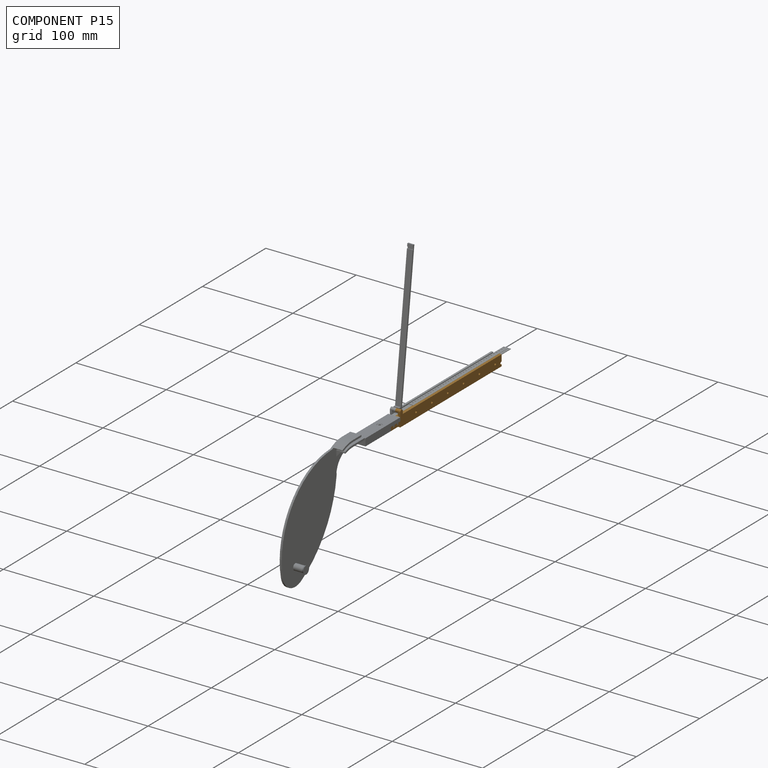
[diagram: component P15 — assembled]
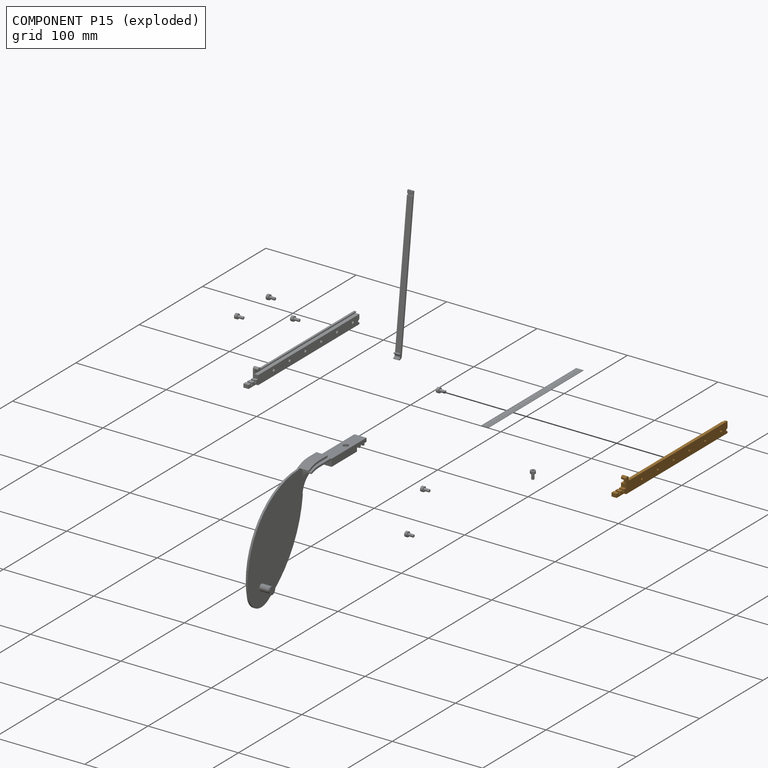
[diagram: component P15 — exploded]
COMPONENT P15 — geometry summary (no construction recipe available for this part):
  bounding box: 175.0 x 17.0 x 5.8 mm
  B-rep topology: 1 solid, 35 faces, 210 edges
  volume: 10153 mm^3 (59% of its bounding box)
Held by: REVOLUTE mate "Revolute 1" to P21; PLANAR mate "Planar 1" to P14; FASTENED mate "Fastened 1" to P5; PLANAR mate "Planar 3" to P12; REVOLUTE mate "Revolute 1" to P21; PLANAR mate "Planar 1" to P14; PLANAR mate "Planar 3" to P12; FASTENED mate "Fastened 1" to P5.
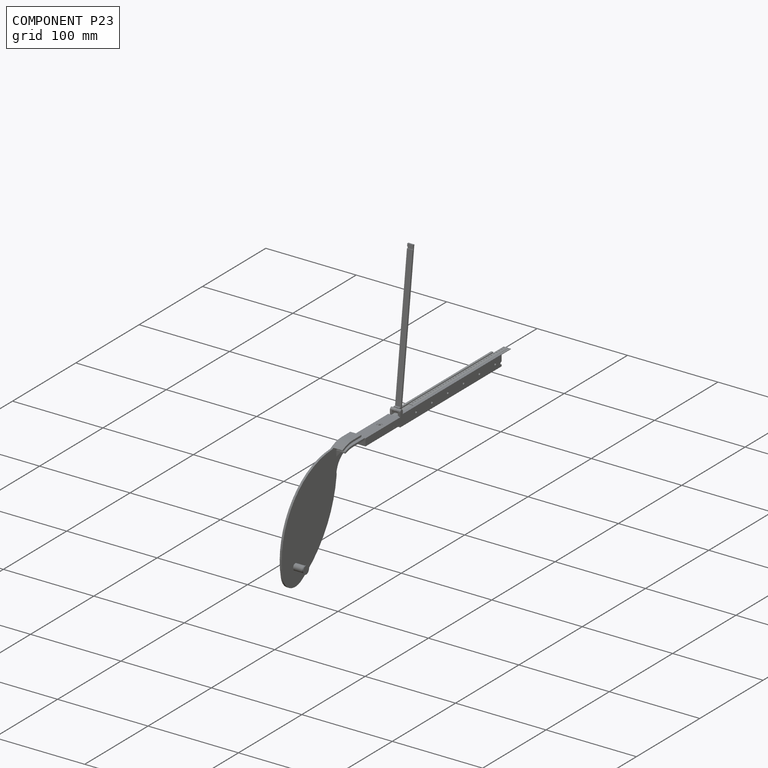
[diagram: component P23 — assembled]
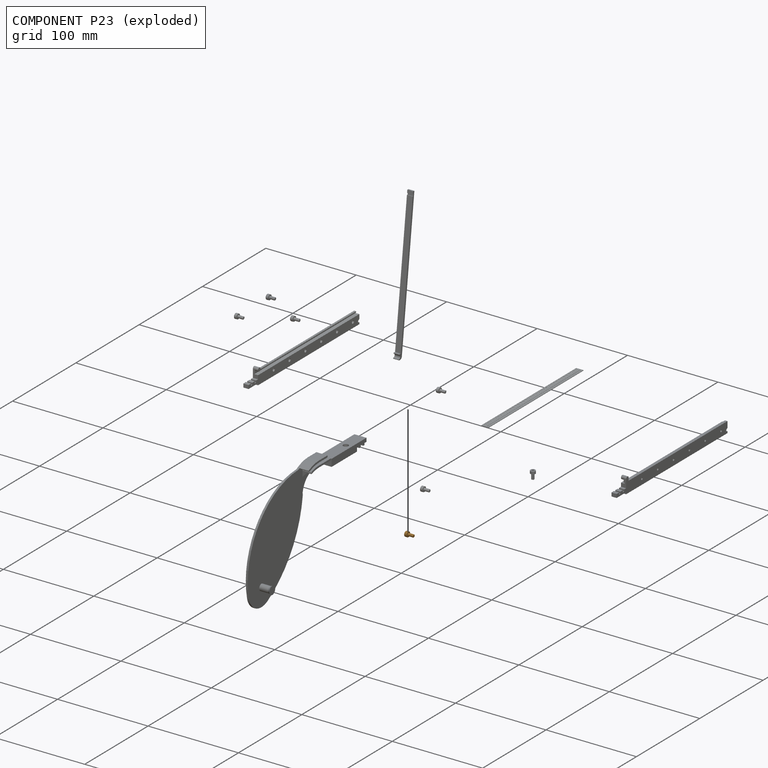
[diagram: component P23 — exploded]
COMPONENT P23 — geometry summary (no construction recipe available for this part):
  bounding box: 9.0 x 6.0 x 6.0 mm
  B-rep topology: 1 solid, 18 faces, 75 edges
  volume: 104 mm^3 (33% of its bounding box)
  symmetry: 6-fold rotationally symmetric about the z axis; mirror-symmetric across its x mid-plane, y mid-plane
Held by: FASTENED mate "Fastened 5" to P5; FASTENED mate "Fastened 5" to P5.
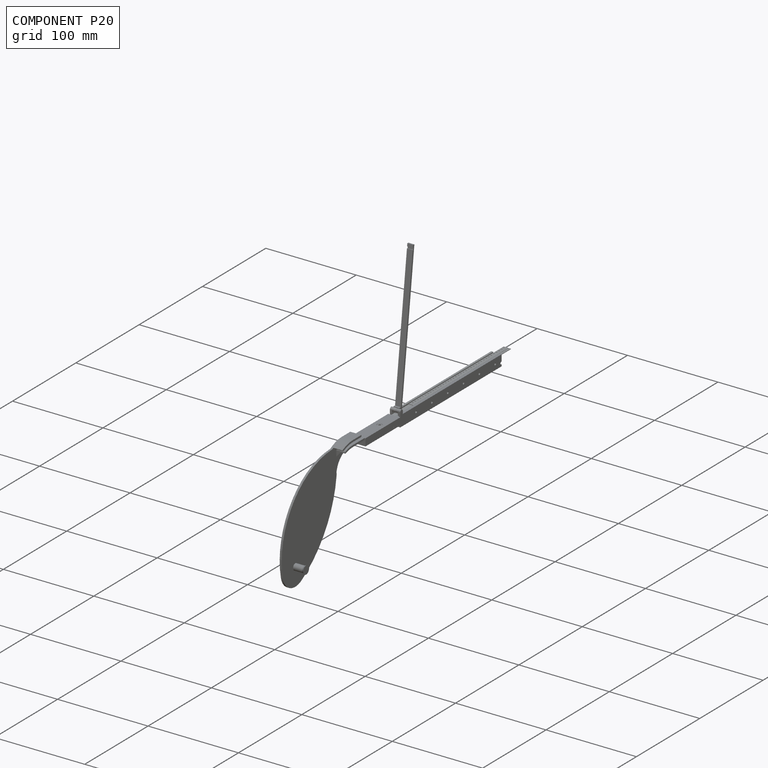
[diagram: component P20 — assembled]
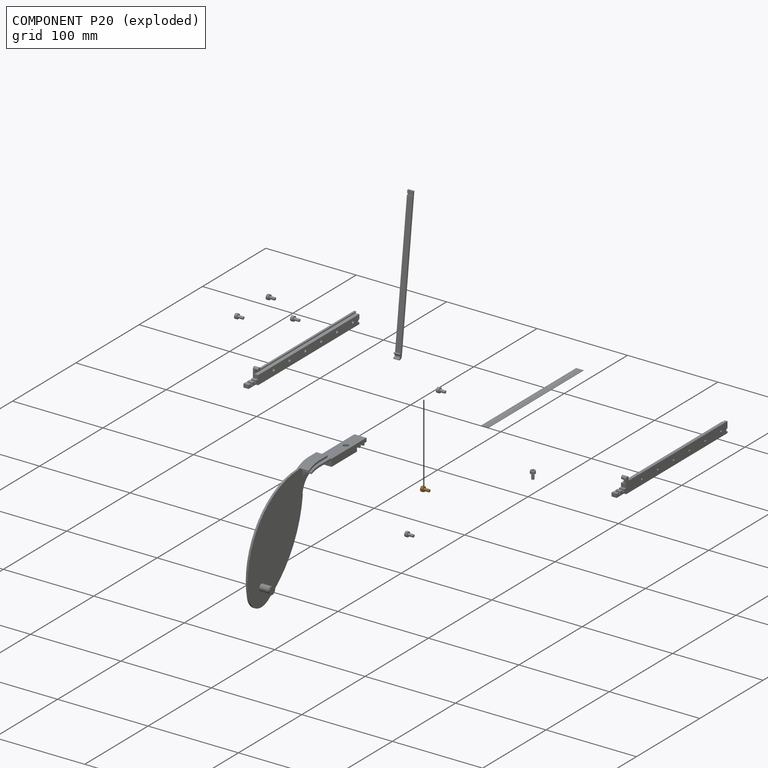
[diagram: component P20 — exploded]
COMPONENT P20 — geometry summary (no construction recipe available for this part):
  bounding box: 9.0 x 6.0 x 6.0 mm
  B-rep topology: 1 solid, 18 faces, 75 edges
  volume: 104 mm^3 (33% of its bounding box)
  symmetry: 6-fold rotationally symmetric about the z axis; mirror-symmetric across its x mid-plane, y mid-plane
Held by: FASTENED mate "Fastened 4" to P5; FASTENED mate "Fastened 4" to P5.
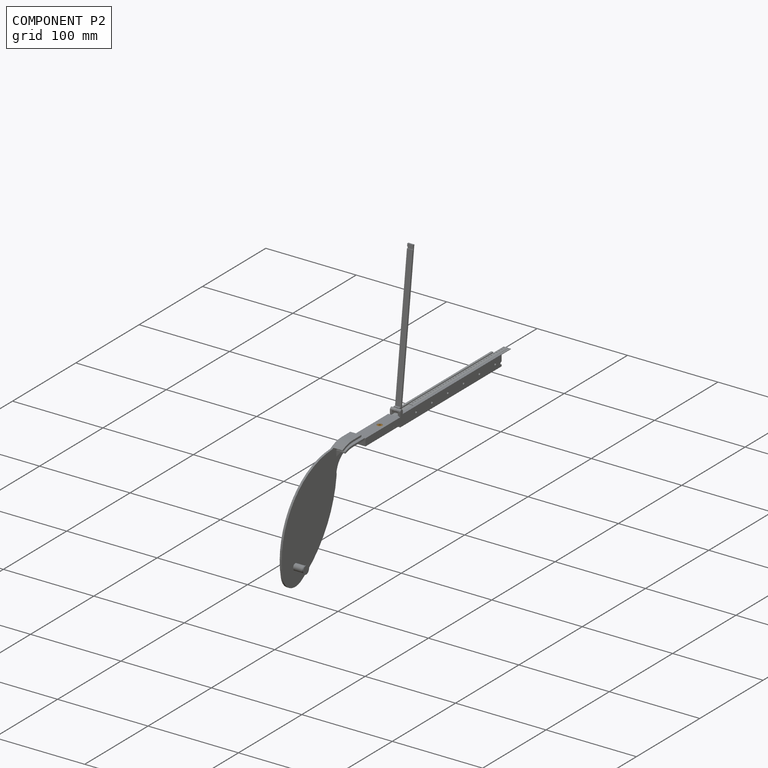
[diagram: component P2 — assembled]
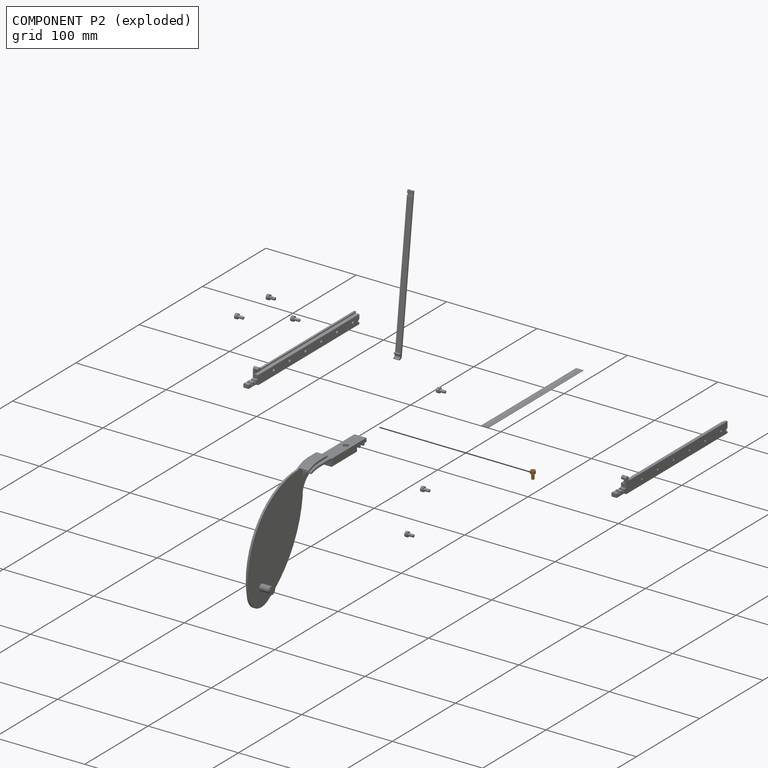
[diagram: component P2 — exploded]
COMPONENT P2 — geometry summary (no construction recipe available for this part):
  bounding box: 9.0 x 6.0 x 6.0 mm
  B-rep topology: 1 solid, 18 faces, 75 edges
  volume: 104 mm^3 (33% of its bounding box)
  symmetry: 6-fold rotationally symmetric about the z axis; mirror-symmetric across its x mid-plane, y mid-plane
Held by: no mates (free).
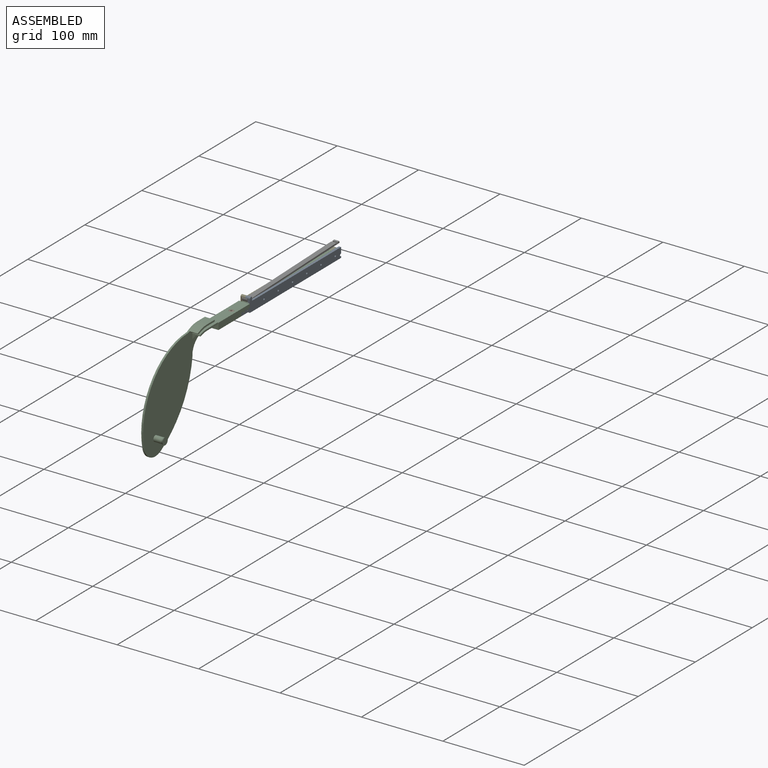
[diagram: subassembly S1 — assembled view]
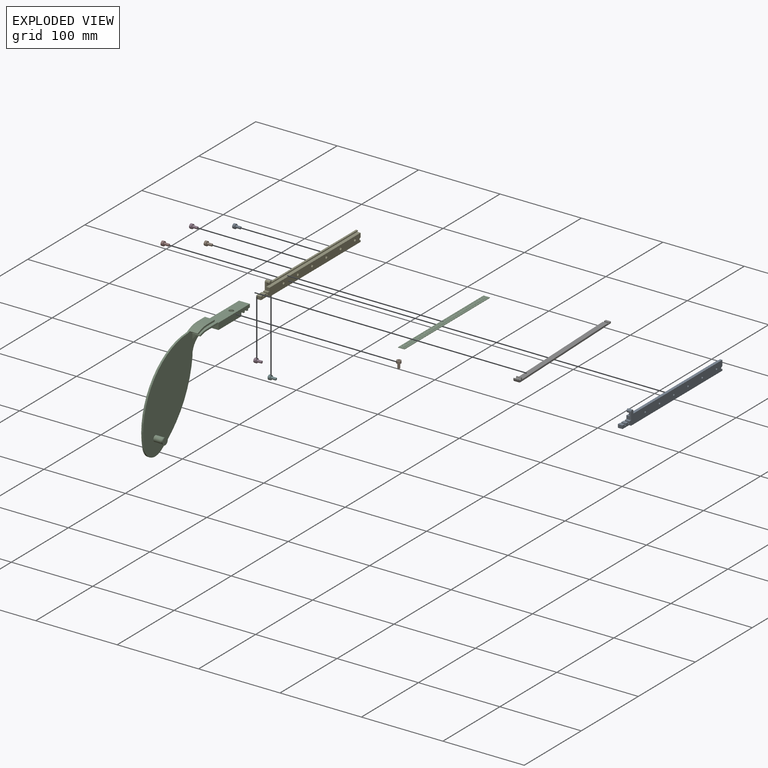
[diagram: subassembly S1 — exploded view]
SUBASSEMBLY S1 TOUR — 12 components, shown here in isolation at its own camera.

INTERNAL MATES
  1. FASTENED "Fastened 4": P10 <-> P11, direction (-1.000, 0.000, 0.000) through (-16.60, 80.00, 9.00) mm
  2. REVOLUTE "Revolute 1": P13 <-> P1, axis (1.000, 0.000, 0.000) through (-10.85, 32.00, 18.00) mm
  3. FASTENED "Fastened 3": P10 <-> P16, direction (-1.000, 0.000, 0.000) through (-16.60, 105.00, 9.00) mm
  4. REVOLUTE "Revolute 2": P10 <-> P4, axis (-1.000, 0.000, 0.000) through (-16.60, 130.00, 9.00) mm
  5. PLANAR "Planar 2": P24 <-> P10, direction (-1.000, 0.000, 0.000) through (-17.85, 105.22, 13.35) mm
  6. PLANAR "Planar 1": P1 <-> P24, direction (0.000, 0.000, 1.000) through (-11.80, 110.00, 13.10) mm
  7. FASTENED "Fastened 1": P10 <-> P1, direction (1.000, 0.000, 0.000) through (-13.85, 55.00, 9.00) mm
  8. FASTENED "Fastened 5": P10 <-> P8, direction (-1.000, 0.000, 0.000) through (-16.60, 55.00, 9.00) mm
  9. REVOLUTE "Revolute 4": P17 <-> P10, axis (1.000, 0.000, 0.000) through (-16.60, 180.00, 9.00) mm
  10. PLANAR "Planar 3": P6 <-> P1, direction (1.000, 0.000, 0.000) through (-8.10, 25.00, 9.00) mm
  11. REVOLUTE "Revolute 3": P25 <-> P10, axis (1.000, 0.000, 0.000) through (-16.60, 155.00, 9.00) mm
  12. REVOLUTE "Revolute 2": P10 <-> P4, axis (-1.000, 0.000, 0.000) through (-16.60, 130.00, 9.00) mm
  13. REVOLUTE "Revolute 1": P13 <-> P1, axis (1.000, 0.000, 0.000) through (-10.85, 32.00, 18.00) mm
  14. REVOLUTE "Revolute 3": P25 <-> P10, axis (1.000, 0.000, 0.000) through (-16.60, 155.00, 9.00) mm
  15. PLANAR "Planar 4": P1 <-> P6, direction (0.000, -1.000, 0.000) through (-10.97, 30.00, 9.00) mm
  16. PLANAR "Planar 2": P24 <-> P10, direction (-1.000, 0.000, 0.000) through (-17.85, 105.22, 13.35) mm
  17. FASTENED "Fastened 1": P10 <-> P1, direction (1.000, 0.000, 0.000) through (-13.85, 55.00, 9.00) mm
  18. REVOLUTE "Revolute 4": P17 <-> P10, axis (1.000, 0.000, 0.000) through (-16.60, 180.00, 9.00) mm
  19. FASTENED "Fastened 3": P10 <-> P16, direction (-1.000, 0.000, 0.000) through (-16.60, 105.00, 9.00) mm
  20. PLANAR "Planar 1": P1 <-> P24, direction (0.000, 0.000, 1.000) through (-11.80, 110.00, 13.10) mm
  21. PLANAR "Planar 3": P6 <-> P1, direction (1.000, 0.000, 0.000) through (-8.10, 25.00, 9.00) mm
  22. FASTENED "Fastened 4": P10 <-> P11, direction (-1.000, 0.000, 0.000) through (-16.60, 80.00, 9.00) mm
  23. FASTENED "Fastened 5": P10 <-> P8, direction (-1.000, 0.000, 0.000) through (-16.60, 55.00, 9.00) mm

ASSEMBLY ORDER (within the subassembly)
  1. P6 — the base component [order verified]
  2. P10 [order verified]
  3. P17 [order verified]
  4. P25 [order verified]
  5. P4 [order verified]
  6. P16 [order verified]
  7. P24 [order verified]
  8. P13 [order verified]
  9. P1 [order verified]
  10. P11 [order verified]
  11. P8 [order verified]
  12. P19 [order verified]
(P1, P4, P13, P16, P17, P25 verified with a relaxed clearance tolerance: the source model stores slight part interference there.)
Order-tag legend:
  [order verified] — this step's position reverses a verified removal order: the component was checked to insert without passing through the ones already placed.
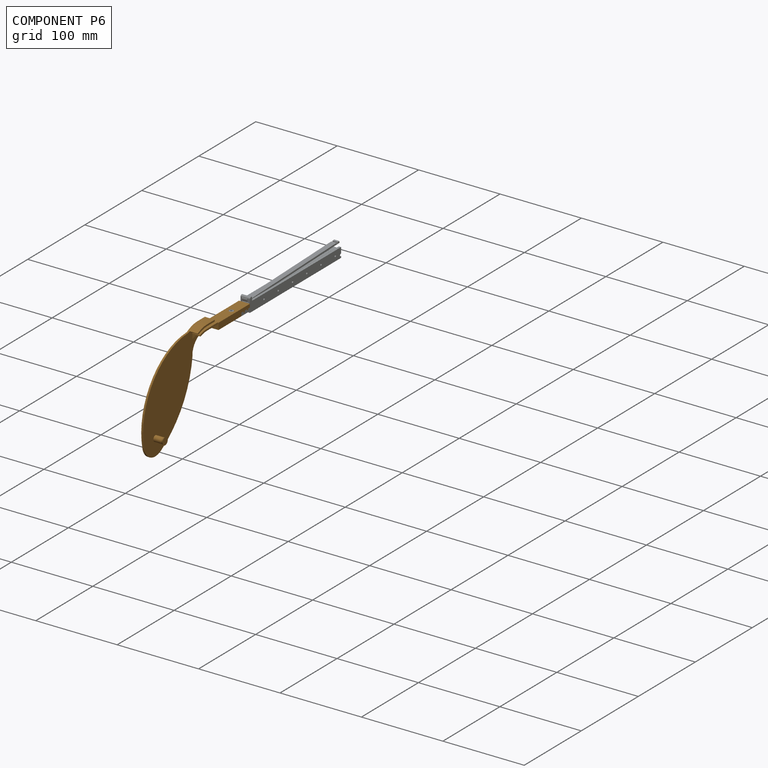
[diagram: component P6 — assembled]
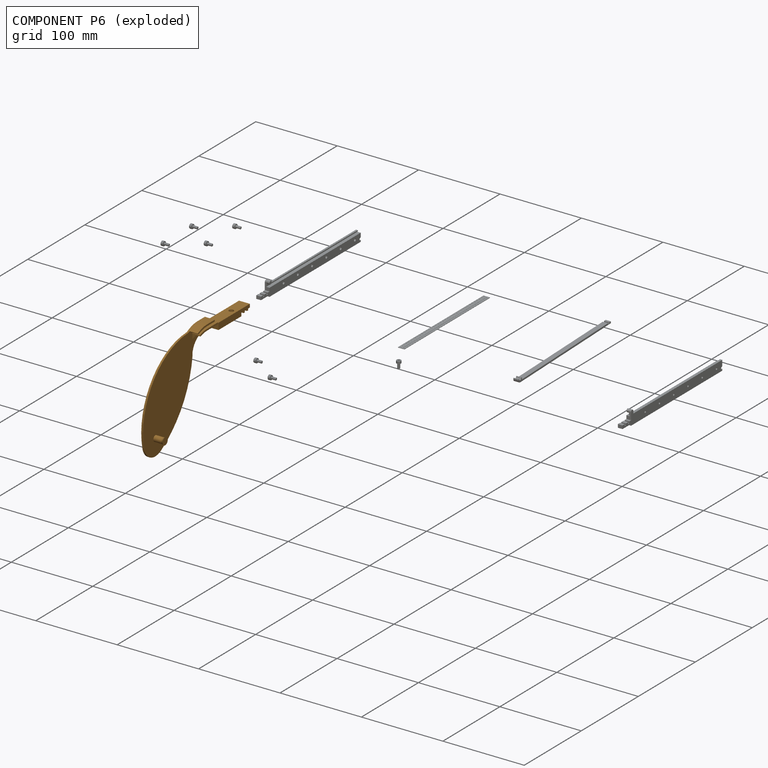
[diagram: component P6 — exploded]
COMPONENT P6 — geometry summary (no construction recipe available for this part):
  bounding box: 171.5 x 120.1 x 14.2 mm
  B-rep topology: 1 solid, 48 faces, 264 edges
  volume: 23029 mm^3 (8% of its bounding box)
Held by: PLANAR mate "Planar 3" to P1; PLANAR mate "Planar 4" to P1; PLANAR mate "Planar 3" to P1.
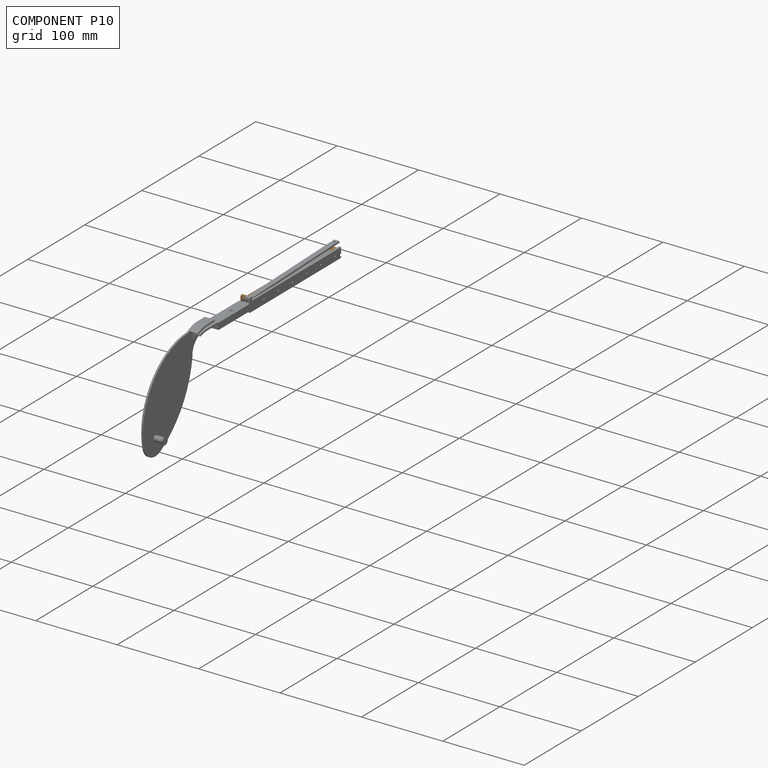
[diagram: component P10 — assembled]
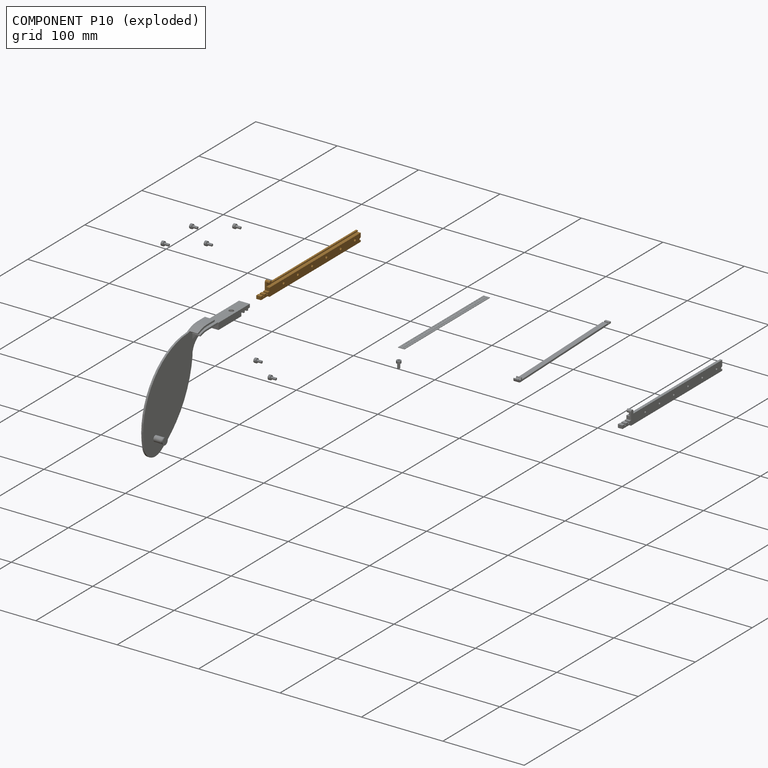
[diagram: component P10 — exploded]
COMPONENT P10 — geometry summary (no construction recipe available for this part):
  bounding box: 175.0 x 17.0 x 5.8 mm
  B-rep topology: 1 solid, 47 faces, 246 edges
  volume: 9630 mm^3 (56% of its bounding box)
Held by: FASTENED mate "Fastened 4" to P11; FASTENED mate "Fastened 3" to P16; REVOLUTE mate "Revolute 2" to P4; PLANAR mate "Planar 2" to P24; FASTENED mate "Fastened 1" to P1; FASTENED mate "Fastened 5" to P8; REVOLUTE mate "Revolute 4" to P17; REVOLUTE mate "Revolute 3" to P25; REVOLUTE mate "Revolute 2" to P4; REVOLUTE mate "Revolute 3" to P25; PLANAR mate "Planar 2" to P24; FASTENED mate "Fastened 1" to P1; REVOLUTE mate "Revolute 4" to P17; FASTENED mate "Fastened 3" to P16; FASTENED mate "Fastened 4" to P11; FASTENED mate "Fastened 5" to P8.
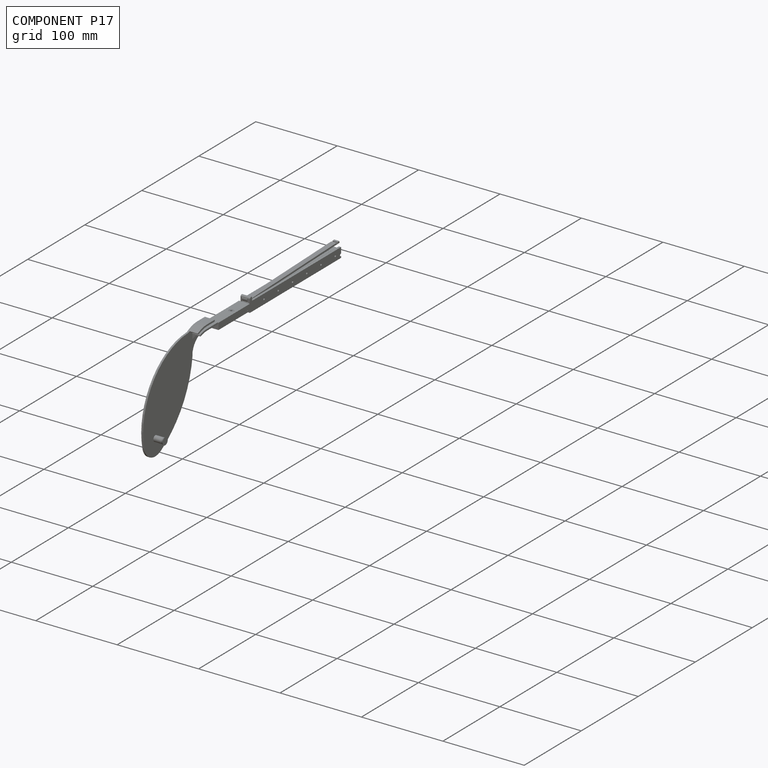
[diagram: component P17 — assembled]
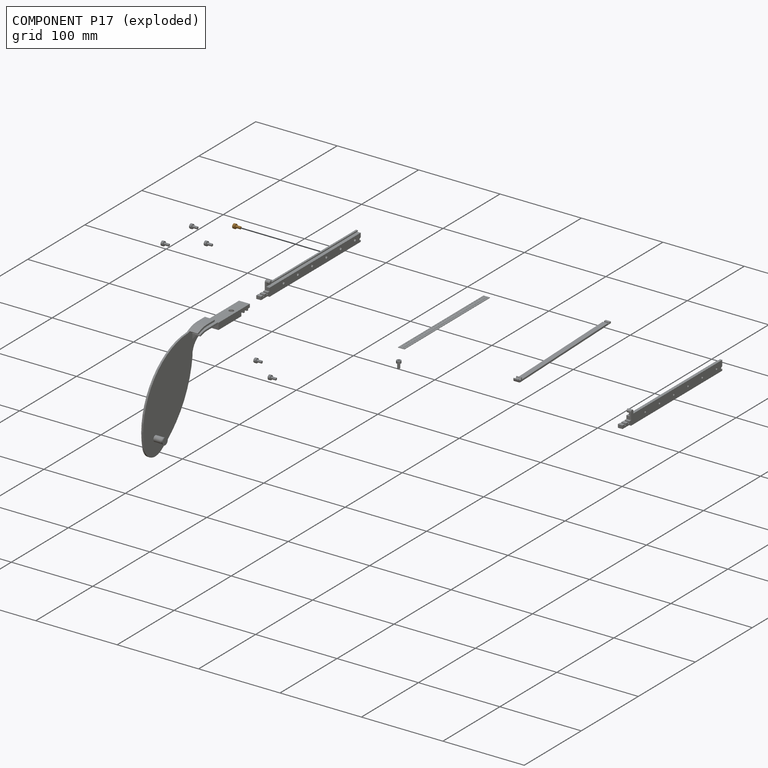
[diagram: component P17 — exploded]
COMPONENT P17 — geometry summary (no construction recipe available for this part):
  bounding box: 9.0 x 6.0 x 6.0 mm
  B-rep topology: 1 solid, 18 faces, 75 edges
  volume: 104 mm^3 (33% of its bounding box)
  symmetry: 6-fold rotationally symmetric about the z axis; mirror-symmetric across its x mid-plane, y mid-plane
Held by: REVOLUTE mate "Revolute 4" to P10; REVOLUTE mate "Revolute 4" to P10.
